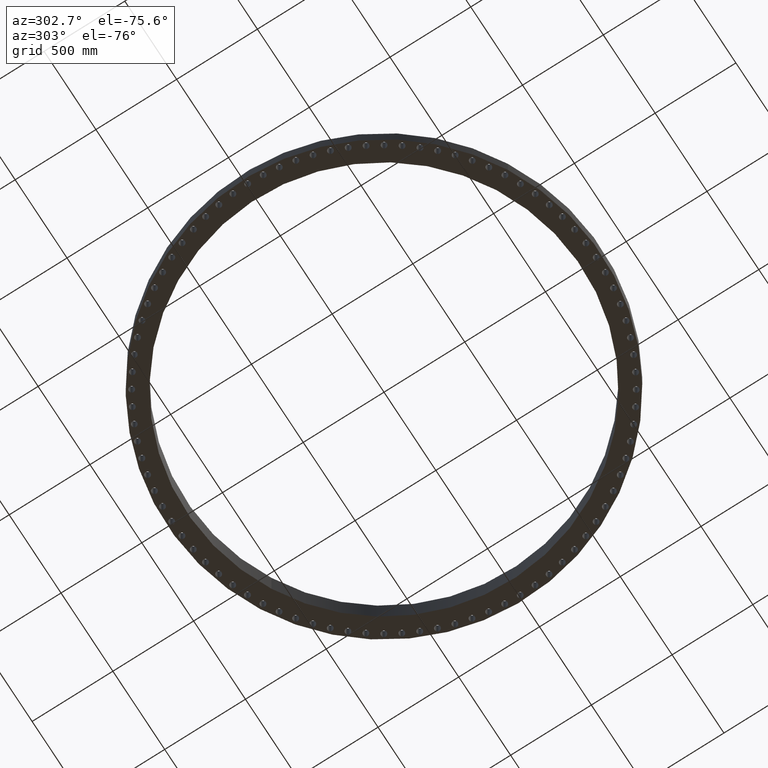
[diagram: clean part render]
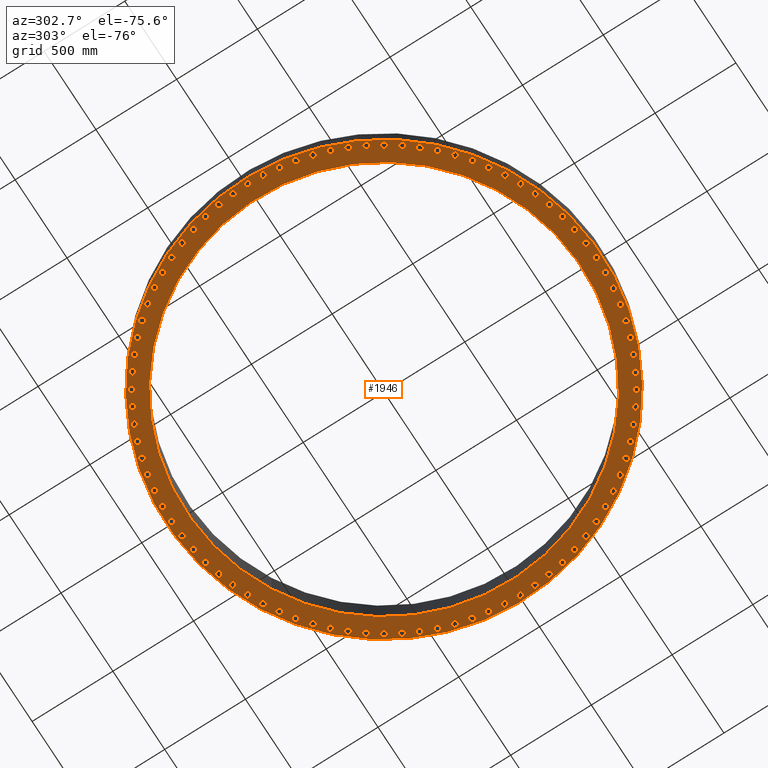
[diagram: same view with one face highlighted and labeled with its STEP entity id]
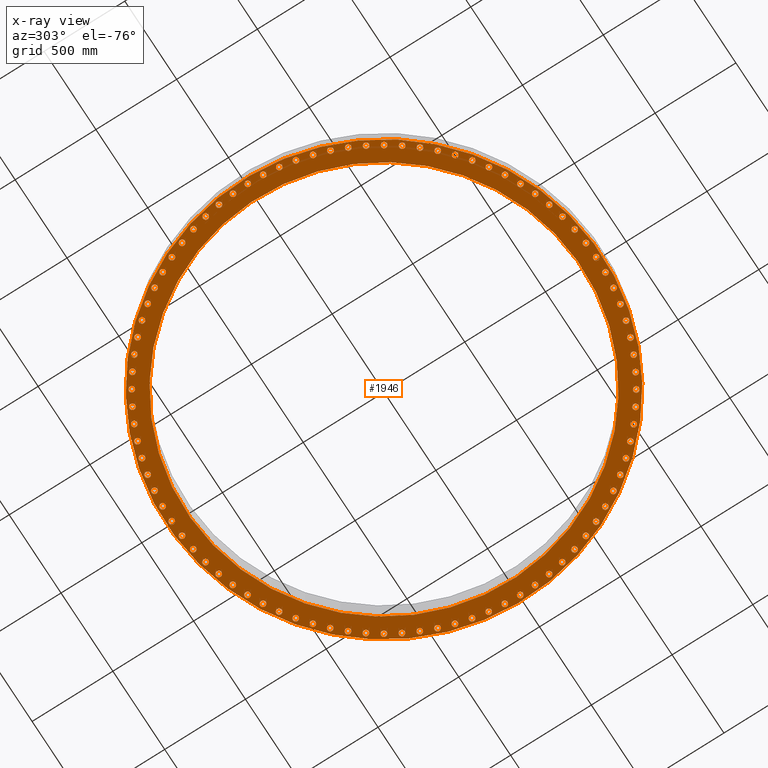
[diagram: x-ray of the same camera — body ghosted, the highlighted face saturated]
A machine part, auxiliary view. The second image highlights one B-rep face of the part: STEP entity #1946.
The next image is the same camera in x-ray: the body ghosted, the highlighted face saturated — about 0% of this face is hidden behind the body in this view.
In plain terms, the highlighted planar face has unit normal (0, 0, -1).
Its self-contained STEP definition (entity closure, byte-faithful):
#51=AXIS2_PLACEMENT_3D('Circle Axis2P3D',#49,#50,$) ;
#77=AXIS2_PLACEMENT_3D('Circle Axis2P3D',#75,#76,$) ;
#99=AXIS2_PLACEMENT_3D('Circle Axis2P3D',#97,#98,$) ;
#134=AXIS2_PLACEMENT_3D('Circle Axis2P3D',#132,#133,$) ;
#334=AXIS2_PLACEMENT_3D('Circle Axis2P3D',#332,#333,$) ;
#353=AXIS2_PLACEMENT_3D('Circle Axis2P3D',#351,#352,$) ;
#366=AXIS2_PLACEMENT_3D('Plane Axis2P3D',#363,#364,#365) ;
#382=AXIS2_PLACEMENT_3D('Circle Axis2P3D',#380,#381,$) ;
#391=AXIS2_PLACEMENT_3D('Circle Axis2P3D',#389,#390,$) ;
#400=AXIS2_PLACEMENT_3D('Circle Axis2P3D',#398,#399,$) ;
#409=AXIS2_PLACEMENT_3D('Circle Axis2P3D',#407,#408,$) ;
#418=AXIS2_PLACEMENT_3D('Circle Axis2P3D',#416,#417,$) ;
#427=AXIS2_PLACEMENT_3D('Circle Axis2P3D',#425,#426,$) ;
#436=AXIS2_PLACEMENT_3D('Circle Axis2P3D',#434,#435,$) ;
#445=AXIS2_PLACEMENT_3D('Circle Axis2P3D',#443,#444,$) ;
#454=AXIS2_PLACEMENT_3D('Circle Axis2P3D',#452,#453,$) ;
#463=AXIS2_PLACEMENT_3D('Circle Axis2P3D',#461,#462,$) ;
#472=AXIS2_PLACEMENT_3D('Circle Axis2P3D',#470,#471,$) ;
#481=AXIS2_PLACEMENT_3D('Circle Axis2P3D',#479,#480,$) ;
#490=AXIS2_PLACEMENT_3D('Circle Axis2P3D',#488,#489,$) ;
#499=AXIS2_PLACEMENT_3D('Circle Axis2P3D',#497,#498,$) ;
#508=AXIS2_PLACEMENT_3D('Circle Axis2P3D',#506,#507,$) ;
#517=AXIS2_PLACEMENT_3D('Circle Axis2P3D',#515,#516,$) ;
#526=AXIS2_PLACEMENT_3D('Circle Axis2P3D',#524,#525,$) ;
#535=AXIS2_PLACEMENT_3D('Circle Axis2P3D',#533,#534,$) ;
#544=AXIS2_PLACEMENT_3D('Circle Axis2P3D',#542,#543,$) ;
#553=AXIS2_PLACEMENT_3D('Circle Axis2P3D',#551,#552,$) ;
#562=AXIS2_PLACEMENT_3D('Circle Axis2P3D',#560,#561,$) ;
#571=AXIS2_PLACEMENT_3D('Circle Axis2P3D',#569,#570,$) ;
#580=AXIS2_PLACEMENT_3D('Circle Axis2P3D',#578,#579,$) ;
#589=AXIS2_PLACEMENT_3D('Circle Axis2P3D',#587,#588,$) ;
#598=AXIS2_PLACEMENT_3D('Circle Axis2P3D',#596,#597,$) ;
#607=AXIS2_PLACEMENT_3D('Circle Axis2P3D',#605,#606,$) ;
#616=AXIS2_PLACEMENT_3D('Circle Axis2P3D',#614,#615,$) ;
#625=AXIS2_PLACEMENT_3D('Circle Axis2P3D',#623,#624,$) ;
#634=AXIS2_PLACEMENT_3D('Circle Axis2P3D',#632,#633,$) ;
#643=AXIS2_PLACEMENT_3D('Circle Axis2P3D',#641,#642,$) ;
#652=AXIS2_PLACEMENT_3D('Circle Axis2P3D',#650,#651,$) ;
#661=AXIS2_PLACEMENT_3D('Circle Axis2P3D',#659,#660,$) ;
#670=AXIS2_PLACEMENT_3D('Circle Axis2P3D',#668,#669,$) ;
#679=AXIS2_PLACEMENT_3D('Circle Axis2P3D',#677,#678,$) ;
#688=AXIS2_PLACEMENT_3D('Circle Axis2P3D',#686,#687,$) ;
#697=AXIS2_PLACEMENT_3D('Circle Axis2P3D',#695,#696,$) ;
#706=AXIS2_PLACEMENT_3D('Circle Axis2P3D',#704,#705,$) ;
#715=AXIS2_PLACEMENT_3D('Circle Axis2P3D',#713,#714,$) ;
#724=AXIS2_PLACEMENT_3D('Circle Axis2P3D',#722,#723,$) ;
#733=AXIS2_PLACEMENT_3D('Circle Axis2P3D',#731,#732,$) ;
#742=AXIS2_PLACEMENT_3D('Circle Axis2P3D',#740,#741,$) ;
#751=AXIS2_PLACEMENT_3D('Circle Axis2P3D',#749,#750,$) ;
#760=AXIS2_PLACEMENT_3D('Circle Axis2P3D',#758,#759,$) ;
#769=AXIS2_PLACEMENT_3D('Circle Axis2P3D',#767,#768,$) ;
#778=AXIS2_PLACEMENT_3D('Circle Axis2P3D',#776,#777,$) ;
#787=AXIS2_PLACEMENT_3D('Circle Axis2P3D',#785,#786,$) ;
#796=AXIS2_PLACEMENT_3D('Circle Axis2P3D',#794,#795,$) ;
#805=AXIS2_PLACEMENT_3D('Circle Axis2P3D',#803,#804,$) ;
#814=AXIS2_PLACEMENT_3D('Circle Axis2P3D',#812,#813,$) ;
#823=AXIS2_PLACEMENT_3D('Circle Axis2P3D',#821,#822,$) ;
#832=AXIS2_PLACEMENT_3D('Circle Axis2P3D',#830,#831,$) ;
#841=AXIS2_PLACEMENT_3D('Circle Axis2P3D',#839,#840,$) ;
#850=AXIS2_PLACEMENT_3D('Circle Axis2P3D',#848,#849,$) ;
#859=AXIS2_PLACEMENT_3D('Circle Axis2P3D',#857,#858,$) ;
#868=AXIS2_PLACEMENT_3D('Circle Axis2P3D',#866,#867,$) ;
#877=AXIS2_PLACEMENT_3D('Circle Axis2P3D',#875,#876,$) ;
#886=AXIS2_PLACEMENT_3D('Circle Axis2P3D',#884,#885,$) ;
#895=AXIS2_PLACEMENT_3D('Circle Axis2P3D',#893,#894,$) ;
#904=AXIS2_PLACEMENT_3D('Circle Axis2P3D',#902,#903,$) ;
#913=AXIS2_PLACEMENT_3D('Circle Axis2P3D',#911,#912,$) ;
#922=AXIS2_PLACEMENT_3D('Circle Axis2P3D',#920,#921,$) ;
#931=AXIS2_PLACEMENT_3D('Circle Axis2P3D',#929,#930,$) ;
#940=AXIS2_PLACEMENT_3D('Circle Axis2P3D',#938,#939,$) ;
#949=AXIS2_PLACEMENT_3D('Circle Axis2P3D',#947,#948,$) ;
#958=AXIS2_PLACEMENT_3D('Circle Axis2P3D',#956,#957,$) ;
#967=AXIS2_PLACEMENT_3D('Circle Axis2P3D',#965,#966,$) ;
#976=AXIS2_PLACEMENT_3D('Circle Axis2P3D',#974,#975,$) ;
#985=AXIS2_PLACEMENT_3D('Circle Axis2P3D',#983,#984,$) ;
#994=AXIS2_PLACEMENT_3D('Circle Axis2P3D',#992,#993,$) ;
#1003=AXIS2_PLACEMENT_3D('Circle Axis2P3D',#1001,#1002,$) ;
#1012=AXIS2_PLACEMENT_3D('Circle Axis2P3D',#1010,#1011,$) ;
#1021=AXIS2_PLACEMENT_3D('Circle Axis2P3D',#1019,#1020,$) ;
#1030=AXIS2_PLACEMENT_3D('Circle Axis2P3D',#1028,#1029,$) ;
#1039=AXIS2_PLACEMENT_3D('Circle Axis2P3D',#1037,#1038,$) ;
#1048=AXIS2_PLACEMENT_3D('Circle Axis2P3D',#1046,#1047,$) ;
#1057=AXIS2_PLACEMENT_3D('Circle Axis2P3D',#1055,#1056,$) ;
#1066=AXIS2_PLACEMENT_3D('Circle Axis2P3D',#1064,#1065,$) ;
#1075=AXIS2_PLACEMENT_3D('Circle Axis2P3D',#1073,#1074,$) ;
#1084=AXIS2_PLACEMENT_3D('Circle Axis2P3D',#1082,#1083,$) ;
#1093=AXIS2_PLACEMENT_3D('Circle Axis2P3D',#1091,#1092,$) ;
#1102=AXIS2_PLACEMENT_3D('Circle Axis2P3D',#1100,#1101,$) ;
#1111=AXIS2_PLACEMENT_3D('Circle Axis2P3D',#1109,#1110,$) ;
#1120=AXIS2_PLACEMENT_3D('Circle Axis2P3D',#1118,#1119,$) ;
#1129=AXIS2_PLACEMENT_3D('Circle Axis2P3D',#1127,#1128,$) ;
#1138=AXIS2_PLACEMENT_3D('Circle Axis2P3D',#1136,#1137,$) ;
#1147=AXIS2_PLACEMENT_3D('Circle Axis2P3D',#1145,#1146,$) ;
#1156=AXIS2_PLACEMENT_3D('Circle Axis2P3D',#1154,#1155,$) ;
#1165=AXIS2_PLACEMENT_3D('Circle Axis2P3D',#1163,#1164,$) ;
#1174=AXIS2_PLACEMENT_3D('Circle Axis2P3D',#1172,#1173,$) ;
#1183=AXIS2_PLACEMENT_3D('Circle Axis2P3D',#1181,#1182,$) ;
#1192=AXIS2_PLACEMENT_3D('Circle Axis2P3D',#1190,#1191,$) ;
#1201=AXIS2_PLACEMENT_3D('Circle Axis2P3D',#1199,#1200,$) ;
#1210=AXIS2_PLACEMENT_3D('Circle Axis2P3D',#1208,#1209,$) ;
#1219=AXIS2_PLACEMENT_3D('Circle Axis2P3D',#1217,#1218,$) ;
#1228=AXIS2_PLACEMENT_3D('Circle Axis2P3D',#1226,#1227,$) ;
#1237=AXIS2_PLACEMENT_3D('Circle Axis2P3D',#1235,#1236,$) ;
#1246=AXIS2_PLACEMENT_3D('Circle Axis2P3D',#1244,#1245,$) ;
#1255=AXIS2_PLACEMENT_3D('Circle Axis2P3D',#1253,#1254,$) ;
#1264=AXIS2_PLACEMENT_3D('Circle Axis2P3D',#1262,#1263,$) ;
#1273=AXIS2_PLACEMENT_3D('Circle Axis2P3D',#1271,#1272,$) ;
#1282=AXIS2_PLACEMENT_3D('Circle Axis2P3D',#1280,#1281,$) ;
#1291=AXIS2_PLACEMENT_3D('Circle Axis2P3D',#1289,#1290,$) ;
#1300=AXIS2_PLACEMENT_3D('Circle Axis2P3D',#1298,#1299,$) ;
#1309=AXIS2_PLACEMENT_3D('Circle Axis2P3D',#1307,#1308,$) ;
#1318=AXIS2_PLACEMENT_3D('Circle Axis2P3D',#1316,#1317,$) ;
#1327=AXIS2_PLACEMENT_3D('Circle Axis2P3D',#1325,#1326,$) ;
#1336=AXIS2_PLACEMENT_3D('Circle Axis2P3D',#1334,#1335,$) ;
#1345=AXIS2_PLACEMENT_3D('Circle Axis2P3D',#1343,#1344,$) ;
#1354=AXIS2_PLACEMENT_3D('Circle Axis2P3D',#1352,#1353,$) ;
#1363=AXIS2_PLACEMENT_3D('Circle Axis2P3D',#1361,#1362,$) ;
#1372=AXIS2_PLACEMENT_3D('Circle Axis2P3D',#1370,#1371,$) ;
#1381=AXIS2_PLACEMENT_3D('Circle Axis2P3D',#1379,#1380,$) ;
#1390=AXIS2_PLACEMENT_3D('Circle Axis2P3D',#1388,#1389,$) ;
#1399=AXIS2_PLACEMENT_3D('Circle Axis2P3D',#1397,#1398,$) ;
#1408=AXIS2_PLACEMENT_3D('Circle Axis2P3D',#1406,#1407,$) ;
#1417=AXIS2_PLACEMENT_3D('Circle Axis2P3D',#1415,#1416,$) ;
#1426=AXIS2_PLACEMENT_3D('Circle Axis2P3D',#1424,#1425,$) ;
#1435=AXIS2_PLACEMENT_3D('Circle Axis2P3D',#1433,#1434,$) ;
#1444=AXIS2_PLACEMENT_3D('Circle Axis2P3D',#1442,#1443,$) ;
#1453=AXIS2_PLACEMENT_3D('Circle Axis2P3D',#1451,#1452,$) ;
#1462=AXIS2_PLACEMENT_3D('Circle Axis2P3D',#1460,#1461,$) ;
#1471=AXIS2_PLACEMENT_3D('Circle Axis2P3D',#1469,#1470,$) ;
#1480=AXIS2_PLACEMENT_3D('Circle Axis2P3D',#1478,#1479,$) ;
#1489=AXIS2_PLACEMENT_3D('Circle Axis2P3D',#1487,#1488,$) ;
#1498=AXIS2_PLACEMENT_3D('Circle Axis2P3D',#1496,#1497,$) ;
#1507=AXIS2_PLACEMENT_3D('Circle Axis2P3D',#1505,#1506,$) ;
#1516=AXIS2_PLACEMENT_3D('Circle Axis2P3D',#1514,#1515,$) ;
#1525=AXIS2_PLACEMENT_3D('Circle Axis2P3D',#1523,#1524,$) ;
#1534=AXIS2_PLACEMENT_3D('Circle Axis2P3D',#1532,#1533,$) ;
#1543=AXIS2_PLACEMENT_3D('Circle Axis2P3D',#1541,#1542,$) ;
#1552=AXIS2_PLACEMENT_3D('Circle Axis2P3D',#1550,#1551,$) ;
#1561=AXIS2_PLACEMENT_3D('Circle Axis2P3D',#1559,#1560,$) ;
#1570=AXIS2_PLACEMENT_3D('Circle Axis2P3D',#1568,#1569,$) ;
#1579=AXIS2_PLACEMENT_3D('Circle Axis2P3D',#1577,#1578,$) ;
#1588=AXIS2_PLACEMENT_3D('Circle Axis2P3D',#1586,#1587,$) ;
#1597=AXIS2_PLACEMENT_3D('Circle Axis2P3D',#1595,#1596,$) ;
#1606=AXIS2_PLACEMENT_3D('Circle Axis2P3D',#1604,#1605,$) ;
#1615=AXIS2_PLACEMENT_3D('Circle Axis2P3D',#1613,#1614,$) ;
#1624=AXIS2_PLACEMENT_3D('Circle Axis2P3D',#1622,#1623,$) ;
#1633=AXIS2_PLACEMENT_3D('Circle Axis2P3D',#1631,#1632,$) ;
#1642=AXIS2_PLACEMENT_3D('Circle Axis2P3D',#1640,#1641,$) ;
#1651=AXIS2_PLACEMENT_3D('Circle Axis2P3D',#1649,#1650,$) ;
#1660=AXIS2_PLACEMENT_3D('Circle Axis2P3D',#1658,#1659,$) ;
#1669=AXIS2_PLACEMENT_3D('Circle Axis2P3D',#1667,#1668,$) ;
#1678=AXIS2_PLACEMENT_3D('Circle Axis2P3D',#1676,#1677,$) ;
#1687=AXIS2_PLACEMENT_3D('Circle Axis2P3D',#1685,#1686,$) ;
#1696=AXIS2_PLACEMENT_3D('Circle Axis2P3D',#1694,#1695,$) ;
#1705=AXIS2_PLACEMENT_3D('Circle Axis2P3D',#1703,#1704,$) ;
#1714=AXIS2_PLACEMENT_3D('Circle Axis2P3D',#1712,#1713,$) ;
#1723=AXIS2_PLACEMENT_3D('Circle Axis2P3D',#1721,#1722,$) ;
#1732=AXIS2_PLACEMENT_3D('Circle Axis2P3D',#1730,#1731,$) ;
#1741=AXIS2_PLACEMENT_3D('Circle Axis2P3D',#1739,#1740,$) ;
#1750=AXIS2_PLACEMENT_3D('Circle Axis2P3D',#1748,#1749,$) ;
#1759=AXIS2_PLACEMENT_3D('Circle Axis2P3D',#1757,#1758,$) ;
#1768=AXIS2_PLACEMENT_3D('Circle Axis2P3D',#1766,#1767,$) ;
#1777=AXIS2_PLACEMENT_3D('Circle Axis2P3D',#1775,#1776,$) ;
#1786=AXIS2_PLACEMENT_3D('Circle Axis2P3D',#1784,#1785,$) ;
#1795=AXIS2_PLACEMENT_3D('Circle Axis2P3D',#1793,#1794,$) ;
#1804=AXIS2_PLACEMENT_3D('Circle Axis2P3D',#1802,#1803,$) ;
#1813=AXIS2_PLACEMENT_3D('Circle Axis2P3D',#1811,#1812,$) ;
#1822=AXIS2_PLACEMENT_3D('Circle Axis2P3D',#1820,#1821,$) ;
#1831=AXIS2_PLACEMENT_3D('Circle Axis2P3D',#1829,#1830,$) ;
#1840=AXIS2_PLACEMENT_3D('Circle Axis2P3D',#1838,#1839,$) ;
#1849=AXIS2_PLACEMENT_3D('Circle Axis2P3D',#1847,#1848,$) ;
#1858=AXIS2_PLACEMENT_3D('Circle Axis2P3D',#1856,#1857,$) ;
#1867=AXIS2_PLACEMENT_3D('Circle Axis2P3D',#1865,#1866,$) ;
#1876=AXIS2_PLACEMENT_3D('Circle Axis2P3D',#1874,#1875,$) ;
#1885=AXIS2_PLACEMENT_3D('Circle Axis2P3D',#1883,#1884,$) ;
#1894=AXIS2_PLACEMENT_3D('Circle Axis2P3D',#1892,#1893,$) ;
#1903=AXIS2_PLACEMENT_3D('Circle Axis2P3D',#1901,#1902,$) ;
#1912=AXIS2_PLACEMENT_3D('Circle Axis2P3D',#1910,#1911,$) ;
#1921=AXIS2_PLACEMENT_3D('Circle Axis2P3D',#1919,#1920,$) ;
#1930=AXIS2_PLACEMENT_3D('Circle Axis2P3D',#1928,#1929,$) ;
#1939=AXIS2_PLACEMENT_3D('Circle Axis2P3D',#1937,#1938,$) ;
#44=CARTESIAN_POINT('Vertex',(51.1444680325,0.330803621638,0.)) ;
#49=CARTESIAN_POINT('Axis2P3D Location',(51.7500000002,0.,0.)) ;
#53=CARTESIAN_POINT('Vertex',(52.3555319679,-0.330803621638,0.)) ;
#75=CARTESIAN_POINT('Axis2P3D Location',(51.7500000002,0.,0.)) ;
#97=CARTESIAN_POINT('Axis2P3D Location',(0.,0.,6.71378962923E-015)) ;
#101=CARTESIAN_POINT('Vertex',(-25.4095535461,-46.5118757804,6.15430716013E-015)) ;
#103=CARTESIAN_POINT('Vertex',(25.4095535461,46.5118757804,6.15430716013E-015)) ;
#132=CARTESIAN_POINT('Axis2P3D Location',(0.,0.,6.71378962923E-015)) ;
#329=CARTESIAN_POINT('Vertex',(-23.0723540454,-42.2336607911,-5.20318696265E-014)) ;
#332=CARTESIAN_POINT('Axis2P3D Location',(0.,0.,-5.37103170338E-014)) ;
#336=CARTESIAN_POINT('Vertex',(23.0723540454,42.2336607911,-5.20318696265E-014)) ;
#351=CARTESIAN_POINT('Axis2P3D Location',(0.,0.,-5.37103170338E-014)) ;
#363=CARTESIAN_POINT('Axis2P3D Location',(0.,48.1250000002,0.)) ;
#380=CARTESIAN_POINT('Axis2P3D Location',(51.6181469313,-3.69180273058,0.)) ;
#384=CARTESIAN_POINT('Vertex',(51.0377570498,-3.31864380267,0.)) ;
#386=CARTESIAN_POINT('Vertex',(52.1985368128,-4.06496165848,-4.47585975282E-015)) ;
#389=CARTESIAN_POINT('Axis2P3D Location',(51.6181469313,-3.69180273058,0.)) ;
#398=CARTESIAN_POINT('Axis2P3D Location',(51.2232596175,-7.36479288067,0.)) ;
#402=CARTESIAN_POINT('Vertex',(50.6709693561,-6.95118017887,0.)) ;
#404=CARTESIAN_POINT('Vertex',(51.775549879,-7.77840558247,-4.47585975282E-015)) ;
#407=CARTESIAN_POINT('Axis2P3D Location',(51.2232596175,-7.36479288067,0.)) ;
#416=CARTESIAN_POINT('Axis2P3D Location',(50.5673503142,-11.0002537344,0.)) ;
#420=CARTESIAN_POINT('Vertex',(50.0459740173,-10.5482949342,0.)) ;
#422=CARTESIAN_POINT('Vertex',(51.0887266111,-11.4522125346,0.)) ;
#425=CARTESIAN_POINT('Axis2P3D Location',(50.5673503142,-11.0002537344,0.)) ;
#434=CARTESIAN_POINT('Axis2P3D Location',(49.6537613847,-14.5796598166,0.)) ;
#438=CARTESIAN_POINT('Vertex',(49.1659558666,-14.0916579965,0.)) ;
#440=CARTESIAN_POINT('Vertex',(50.1415669029,-15.0676616367,-4.47585975282E-015)) ;
#443=CARTESIAN_POINT('Axis2P3D Location',(49.6537613847,-14.5796598166,0.)) ;
#452=CARTESIAN_POINT('Axis2P3D Location',(48.4871482689,-18.0847712943,0.)) ;
#456=CARTESIAN_POINT('Vertex',(48.0353992746,-17.5632131997,0.)) ;
#458=CARTESIAN_POINT('Vertex',(48.9388972633,-18.606329389,-4.47585975282E-015)) ;
#461=CARTESIAN_POINT('Axis2P3D Location',(48.4871482689,-18.0847712943,0.)) ;
#470=CARTESIAN_POINT('Axis2P3D Location',(47.0734557598,-21.4977269229,0.)) ;
#474=CARTESIAN_POINT('Vertex',(46.6600652985,-20.9452702943,0.)) ;
#476=CARTESIAN_POINT('Vertex',(47.486846221,-22.0501835516,0.)) ;
#479=CARTESIAN_POINT('Axis2P3D Location',(47.0734557598,-21.4977269229,0.)) ;
#488=CARTESIAN_POINT('Axis2P3D Location',(45.4198877103,-24.8011350629,0.)) ;
#492=CARTESIAN_POINT('Vertex',(45.0469623252,-24.2205950925,0.)) ;
#494=CARTESIAN_POINT('Vertex',(45.7928130954,-25.3816750332,0.)) ;
#497=CARTESIAN_POINT('Axis2P3D Location',(45.4198877103,-24.8011350629,0.)) ;
#506=CARTESIAN_POINT('Axis2P3D Location',(43.5348703242,-27.9781623034,0.)) ;
#510=CARTESIAN_POINT('Vertex',(43.2043103575,-27.37249729,0.)) ;
#512=CARTESIAN_POINT('Vertex',(43.8654302908,-28.5838273168,0.)) ;
#515=CARTESIAN_POINT('Axis2P3D Location',(43.5348703242,-27.9781623034,0.)) ;
#524=CARTESIAN_POINT('Axis2P3D Location',(41.428009218,-31.0126192421,0.)) ;
#528=CARTESIAN_POINT('Vertex',(41.1414991276,-30.3849155157,0.)) ;
#530=CARTESIAN_POINT('Vertex',(41.7145193084,-31.6403229685,0.)) ;
#533=CARTESIAN_POINT('Axis2P3D Location',(41.428009218,-31.0126192421,0.)) ;
#542=CARTESIAN_POINT('Axis2P3D Location',(39.110040473,-33.8890429818,0.)) ;
#546=CARTESIAN_POINT('Vertex',(38.8690402486,-33.2424991768,0.)) ;
#548=CARTESIAN_POINT('Vertex',(39.3510406974,-34.5355867869,0.)) ;
#551=CARTESIAN_POINT('Axis2P3D Location',(39.110040473,-33.8890429818,0.)) ;
#560=CARTESIAN_POINT('Axis2P3D Location',(36.5927759266,-36.5927759266,0.)) ;
#564=CARTESIAN_POINT('Vertex',(36.3985136501,-35.9306866819,0.)) ;
#566=CARTESIAN_POINT('Vertex',(36.787038203,-37.2548651712,0.)) ;
#569=CARTESIAN_POINT('Axis2P3D Location',(36.5927759266,-36.5927759266,0.)) ;
#578=CARTESIAN_POINT('Axis2P3D Location',(33.8890429818,-39.110040473,0.)) ;
#582=CARTESIAN_POINT('Vertex',(33.7425085693,-38.4357796437,0.)) ;
#584=CARTESIAN_POINT('Vertex',(34.0355773944,-39.7843013023,-4.47585975282E-015)) ;
#587=CARTESIAN_POINT('Axis2P3D Location',(33.8890429818,-39.110040473,0.)) ;
#596=CARTESIAN_POINT('Axis2P3D Location',(31.0126192421,-41.428009218,0.)) ;
#600=CARTESIAN_POINT('Vertex',(30.9145593992,-40.7450126827,0.)) ;
#602=CARTESIAN_POINT('Vertex',(31.1106790849,-42.1110057533,0.)) ;
#605=CARTESIAN_POINT('Axis2P3D Location',(31.0126192421,-41.428009218,0.)) ;
#614=CARTESIAN_POINT('Axis2P3D Location',(27.9781623034,-43.5348703242,0.)) ;
#618=CARTESIAN_POINT('Vertex',(27.9290767208,-42.8466184767,0.)) ;
#620=CARTESIAN_POINT('Vertex',(28.0272478861,-44.2231221717,0.)) ;
#623=CARTESIAN_POINT('Axis2P3D Location',(27.9781623034,-43.5348703242,0.)) ;
#632=CARTESIAN_POINT('Axis2P3D Location',(24.8011350629,-45.4198877103,0.)) ;
#636=CARTESIAN_POINT('Vertex',(24.8012738693,-44.7298877242,0.)) ;
#638=CARTESIAN_POINT('Vertex',(24.8009962564,-46.1098876963,0.)) ;
#641=CARTESIAN_POINT('Axis2P3D Location',(24.8011350629,-45.4198877103,0.)) ;
#650=CARTESIAN_POINT('Axis2P3D Location',(21.4977269229,-47.0734557598,0.)) ;
#654=CARTESIAN_POINT('Vertex',(21.5470894111,-46.385223717,0.)) ;
#656=CARTESIAN_POINT('Vertex',(21.4483644348,-47.7616878026,0.)) ;
#659=CARTESIAN_POINT('Axis2P3D Location',(21.4977269229,-47.0734557598,0.)) ;
#668=CARTESIAN_POINT('Axis2P3D Location',(18.0847712943,-48.4871482689,0.)) ;
#672=CARTESIAN_POINT('Vertex',(18.1831059243,-47.8041912421,0.)) ;
#674=CARTESIAN_POINT('Vertex',(17.9864366643,-49.1701052958,0.)) ;
#677=CARTESIAN_POINT('Axis2P3D Location',(18.0847712943,-48.4871482689,0.)) ;
#686=CARTESIAN_POINT('Axis2P3D Location',(14.5796598166,-49.6537613847,0.)) ;
#690=CARTESIAN_POINT('Vertex',(14.7264654977,-48.9795595663,0.)) ;
#692=CARTESIAN_POINT('Vertex',(14.4328541355,-50.3279632032,-4.47585975282E-015)) ;
#695=CARTESIAN_POINT('Axis2P3D Location',(14.5796598166,-49.6537613847,0.)) ;
#704=CARTESIAN_POINT('Axis2P3D Location',(11.0002537344,-50.5673503142,0.)) ;
#708=CARTESIAN_POINT('Vertex',(11.1947823785,-49.9053392821,0.)) ;
#710=CARTESIAN_POINT('Vertex',(10.8057250903,-51.2293613463,0.)) ;
#713=CARTESIAN_POINT('Axis2P3D Location',(11.0002537344,-50.5673503142,0.)) ;
#722=CARTESIAN_POINT('Axis2P3D Location',(7.36479288067,-51.2232596175,0.)) ;
#726=CARTESIAN_POINT('Vertex',(7.60605321437,-50.5768128282,0.)) ;
#728=CARTESIAN_POINT('Vertex',(7.12353254698,-51.8697064068,0.)) ;
#731=CARTESIAN_POINT('Axis2P3D Location',(7.36479288067,-51.2232596175,0.)) ;
#740=CARTESIAN_POINT('Axis2P3D Location',(3.69180273058,-51.6181469313,0.)) ;
#744=CARTESIAN_POINT('Vertex',(3.97856534652,-50.9905585295,0.)) ;
#746=CARTESIAN_POINT('Vertex',(3.40504011463,-52.2457353331,-4.47585975282E-015)) ;
#749=CARTESIAN_POINT('Axis2P3D Location',(3.69180273058,-51.6181469313,0.)) ;
#758=CARTESIAN_POINT('Axis2P3D Location',(-2.44773580232E-015,-51.7500000002,0.)) ;
#762=CARTESIAN_POINT('Vertex',(0.330803621638,-51.1444680325,0.)) ;
#764=CARTESIAN_POINT('Vertex',(-0.330803621638,-52.3555319679,0.)) ;
#767=CARTESIAN_POINT('Axis2P3D Location',(-8.53210765381E-015,-51.7500000002,0.)) ;
#776=CARTESIAN_POINT('Axis2P3D Location',(-3.69180273058,-51.6181469313,0.)) ;
#780=CARTESIAN_POINT('Vertex',(-3.31864380267,-51.0377570498,0.)) ;
#782=CARTESIAN_POINT('Vertex',(-4.06496165848,-52.1985368128,-4.47585975282E-015)) ;
#785=CARTESIAN_POINT('Axis2P3D Location',(-3.69180273058,-51.6181469313,0.)) ;
#794=CARTESIAN_POINT('Axis2P3D Location',(-7.36479288067,-51.2232596175,0.)) ;
#798=CARTESIAN_POINT('Vertex',(-6.95118017887,-50.6709693561,0.)) ;
#800=CARTESIAN_POINT('Vertex',(-7.77840558247,-51.775549879,0.)) ;
#803=CARTESIAN_POINT('Axis2P3D Location',(-7.36479288067,-51.2232596175,0.)) ;
#812=CARTESIAN_POINT('Axis2P3D Location',(-11.0002537344,-50.5673503142,0.)) ;
#816=CARTESIAN_POINT('Vertex',(-10.5482949342,-50.0459740173,0.)) ;
#818=CARTESIAN_POINT('Vertex',(-11.4522125346,-51.0887266111,0.)) ;
#821=CARTESIAN_POINT('Axis2P3D Location',(-11.0002537344,-50.5673503142,0.)) ;
#830=CARTESIAN_POINT('Axis2P3D Location',(-14.5796598166,-49.6537613847,0.)) ;
#834=CARTESIAN_POINT('Vertex',(-14.0916579965,-49.1659558666,0.)) ;
#836=CARTESIAN_POINT('Vertex',(-15.0676616367,-50.1415669029,-4.47585975282E-015)) ;
#839=CARTESIAN_POINT('Axis2P3D Location',(-14.5796598166,-49.6537613847,0.)) ;
#848=CARTESIAN_POINT('Axis2P3D Location',(-18.0847712943,-48.4871482689,0.)) ;
#852=CARTESIAN_POINT('Vertex',(-17.5632131997,-48.0353992746,0.)) ;
#854=CARTESIAN_POINT('Vertex',(-18.606329389,-48.9388972633,-4.47585975282E-015)) ;
#857=CARTESIAN_POINT('Axis2P3D Location',(-18.0847712943,-48.4871482689,0.)) ;
#866=CARTESIAN_POINT('Axis2P3D Location',(-21.4977269229,-47.0734557598,0.)) ;
#870=CARTESIAN_POINT('Vertex',(-20.9452702943,-46.6600652985,0.)) ;
#872=CARTESIAN_POINT('Vertex',(-22.0501835516,-47.486846221,0.)) ;
#875=CARTESIAN_POINT('Axis2P3D Location',(-21.4977269229,-47.0734557598,0.)) ;
#884=CARTESIAN_POINT('Axis2P3D Location',(-24.8011350629,-45.4198877103,0.)) ;
#888=CARTESIAN_POINT('Vertex',(-24.2205950925,-45.0469623252,0.)) ;
#890=CARTESIAN_POINT('Vertex',(-25.3816750332,-45.7928130954,-4.47585975282E-015)) ;
#893=CARTESIAN_POINT('Axis2P3D Location',(-24.8011350629,-45.4198877103,0.)) ;
#902=CARTESIAN_POINT('Axis2P3D Location',(-27.9781623034,-43.5348703242,0.)) ;
#906=CARTESIAN_POINT('Vertex',(-27.37249729,-43.2043103575,0.)) ;
#908=CARTESIAN_POINT('Vertex',(-28.5838273168,-43.8654302908,-4.47585975282E-015)) ;
#911=CARTESIAN_POINT('Axis2P3D Location',(-27.9781623034,-43.5348703242,0.)) ;
#920=CARTESIAN_POINT('Axis2P3D Location',(-31.0126192421,-41.428009218,0.)) ;
#924=CARTESIAN_POINT('Vertex',(-30.3849155157,-41.1414991276,0.)) ;
#926=CARTESIAN_POINT('Vertex',(-31.6403229685,-41.7145193084,0.)) ;
#929=CARTESIAN_POINT('Axis2P3D Location',(-31.0126192421,-41.428009218,0.)) ;
#938=CARTESIAN_POINT('Axis2P3D Location',(-33.8890429818,-39.110040473,0.)) ;
#942=CARTESIAN_POINT('Vertex',(-33.2424991768,-38.8690402486,0.)) ;
#944=CARTESIAN_POINT('Vertex',(-34.5355867869,-39.3510406974,-4.47585975282E-015)) ;
#947=CARTESIAN_POINT('Axis2P3D Location',(-33.8890429818,-39.110040473,0.)) ;
#956=CARTESIAN_POINT('Axis2P3D Location',(-36.5927759266,-36.5927759266,0.)) ;
#960=CARTESIAN_POINT('Vertex',(-35.9306866819,-36.3985136501,0.)) ;
#962=CARTESIAN_POINT('Vertex',(-37.2548651712,-36.787038203,0.)) ;
#965=CARTESIAN_POINT('Axis2P3D Location',(-36.5927759266,-36.5927759266,0.)) ;
#974=CARTESIAN_POINT('Axis2P3D Location',(-39.110040473,-33.8890429818,0.)) ;
#978=CARTESIAN_POINT('Vertex',(-38.4357796437,-33.7425085693,0.)) ;
#980=CARTESIAN_POINT('Vertex',(-39.7843013023,-34.0355773944,0.)) ;
#983=CARTESIAN_POINT('Axis2P3D Location',(-39.110040473,-33.8890429818,0.)) ;
#992=CARTESIAN_POINT('Axis2P3D Location',(-41.428009218,-31.0126192421,0.)) ;
#996=CARTESIAN_POINT('Vertex',(-40.7450126827,-30.9145593992,0.)) ;
#998=CARTESIAN_POINT('Vertex',(-42.1110057533,-31.1106790849,0.)) ;
#1001=CARTESIAN_POINT('Axis2P3D Location',(-41.428009218,-31.0126192421,0.)) ;
#1010=CARTESIAN_POINT('Axis2P3D Location',(-43.5348703242,-27.9781623034,0.)) ;
#1014=CARTESIAN_POINT('Vertex',(-42.8466184767,-27.9290767208,0.)) ;
#1016=CARTESIAN_POINT('Vertex',(-44.2231221717,-28.0272478861,0.)) ;
#1019=CARTESIAN_POINT('Axis2P3D Location',(-43.5348703242,-27.9781623034,0.)) ;
#1028=CARTESIAN_POINT('Axis2P3D Location',(-45.4198877103,-24.8011350629,0.)) ;
#1032=CARTESIAN_POINT('Vertex',(-44.7298877242,-24.8012738693,0.)) ;
#1034=CARTESIAN_POINT('Vertex',(-46.1098876963,-24.8009962564,-4.47585975282E-015)) ;
#1037=CARTESIAN_POINT('Axis2P3D Location',(-45.4198877103,-24.8011350629,0.)) ;
#1046=CARTESIAN_POINT('Axis2P3D Location',(-47.0734557598,-21.4977269229,0.)) ;
#1050=CARTESIAN_POINT('Vertex',(-46.385223717,-21.5470894111,0.)) ;
#1052=CARTESIAN_POINT('Vertex',(-47.7616878026,-21.4483644348,0.)) ;
#1055=CARTESIAN_POINT('Axis2P3D Location',(-47.0734557598,-21.4977269229,0.)) ;
#1064=CARTESIAN_POINT('Axis2P3D Location',(-48.4871482689,-18.0847712943,0.)) ;
#1068=CARTESIAN_POINT('Vertex',(-47.8041912421,-18.1831059243,0.)) ;
#1070=CARTESIAN_POINT('Vertex',(-49.1701052958,-17.9864366643,-4.47585975282E-015)) ;
#1073=CARTESIAN_POINT('Axis2P3D Location',(-48.4871482689,-18.0847712943,0.)) ;
#1082=CARTESIAN_POINT('Axis2P3D Location',(-49.6537613847,-14.5796598166,0.)) ;
#1086=CARTESIAN_POINT('Vertex',(-48.9795595663,-14.7264654977,0.)) ;
#1088=CARTESIAN_POINT('Vertex',(-50.3279632032,-14.4328541355,0.)) ;
#1091=CARTESIAN_POINT('Axis2P3D Location',(-49.6537613847,-14.5796598166,0.)) ;
#1100=CARTESIAN_POINT('Axis2P3D Location',(-50.5673503142,-11.0002537344,0.)) ;
#1104=CARTESIAN_POINT('Vertex',(-49.9053392821,-11.1947823785,0.)) ;
#1106=CARTESIAN_POINT('Vertex',(-51.2293613463,-10.8057250903,0.)) ;
#1109=CARTESIAN_POINT('Axis2P3D Location',(-50.5673503142,-11.0002537344,0.)) ;
#1118=CARTESIAN_POINT('Axis2P3D Location',(-51.2232596175,-7.36479288067,0.)) ;
#1122=CARTESIAN_POINT('Vertex',(-50.5768128282,-7.60605321437,0.)) ;
#1124=CARTESIAN_POINT('Vertex',(-51.8697064068,-7.12353254698,-4.47585975282E-015)) ;
#1127=CARTESIAN_POINT('Axis2P3D Location',(-51.2232596175,-7.36479288067,0.)) ;
#1136=CARTESIAN_POINT('Axis2P3D Location',(-51.6181469313,-3.69180273058,0.)) ;
#1140=CARTESIAN_POINT('Vertex',(-50.9905585295,-3.97856534652,0.)) ;
#1142=CARTESIAN_POINT('Vertex',(-52.2457353331,-3.40504011463,-4.47585975282E-015)) ;
#1145=CARTESIAN_POINT('Axis2P3D Location',(-51.6181469313,-3.69180273058,0.)) ;
#1154=CARTESIAN_POINT('Axis2P3D Location',(-51.7500000002,-8.95171950564E-015,0.)) ;
#1158=CARTESIAN_POINT('Vertex',(-51.1444680325,-0.330803621638,0.)) ;
#1160=CARTESIAN_POINT('Vertex',(-52.3555319679,0.330803621638,0.)) ;
#1163=CARTESIAN_POINT('Axis2P3D Location',(-51.7500000002,-8.95171950564E-015,0.)) ;
#1172=CARTESIAN_POINT('Axis2P3D Location',(-51.6181469313,3.69180273058,0.)) ;
#1176=CARTESIAN_POINT('Vertex',(-51.0377570498,3.31864380267,0.)) ;
#1178=CARTESIAN_POINT('Vertex',(-52.1985368128,4.06496165848,-4.47585975282E-015)) ;
#1181=CARTESIAN_POINT('Axis2P3D Location',(-51.6181469313,3.69180273058,0.)) ;
#1190=CARTESIAN_POINT('Axis2P3D Location',(-51.2232596175,7.36479288067,0.)) ;
#1194=CARTESIAN_POINT('Vertex',(-50.6709693561,6.95118017887,0.)) ;
#1196=CARTESIAN_POINT('Vertex',(-51.775549879,7.77840558247,0.)) ;
#1199=CARTESIAN_POINT('Axis2P3D Location',(-51.2232596175,7.36479288067,0.)) ;
#1208=CARTESIAN_POINT('Axis2P3D Location',(-50.5673503142,11.0002537344,0.)) ;
#1212=CARTESIAN_POINT('Vertex',(-50.0459740173,10.5482949342,0.)) ;
#1214=CARTESIAN_POINT('Vertex',(-51.0887266111,11.4522125346,0.)) ;
#1217=CARTESIAN_POINT('Axis2P3D Location',(-50.5673503142,11.0002537344,0.)) ;
#1226=CARTESIAN_POINT('Axis2P3D Location',(-49.6537613847,14.5796598166,0.)) ;
#1230=CARTESIAN_POINT('Vertex',(-49.1659558666,14.0916579965,0.)) ;
#1232=CARTESIAN_POINT('Vertex',(-50.1415669029,15.0676616367,0.)) ;
#1235=CARTESIAN_POINT('Axis2P3D Location',(-49.6537613847,14.5796598166,0.)) ;
#1244=CARTESIAN_POINT('Axis2P3D Location',(-48.4871482689,18.0847712943,0.)) ;
#1248=CARTESIAN_POINT('Vertex',(-48.0353992746,17.5632131997,0.)) ;
#1250=CARTESIAN_POINT('Vertex',(-48.9388972633,18.606329389,0.)) ;
#1253=CARTESIAN_POINT('Axis2P3D Location',(-48.4871482689,18.0847712943,0.)) ;
#1262=CARTESIAN_POINT('Axis2P3D Location',(-47.0734557598,21.4977269229,0.)) ;
#1266=CARTESIAN_POINT('Vertex',(-46.6600652985,20.9452702943,0.)) ;
#1268=CARTESIAN_POINT('Vertex',(-47.486846221,22.0501835516,0.)) ;
#1271=CARTESIAN_POINT('Axis2P3D Location',(-47.0734557598,21.4977269229,0.)) ;
#1280=CARTESIAN_POINT('Axis2P3D Location',(-45.4198877103,24.8011350629,0.)) ;
#1284=CARTESIAN_POINT('Vertex',(-45.0469623252,24.2205950925,0.)) ;
#1286=CARTESIAN_POINT('Vertex',(-45.7928130954,25.3816750332,-4.47585975282E-015)) ;
#1289=CARTESIAN_POINT('Axis2P3D Location',(-45.4198877103,24.8011350629,0.)) ;
#1298=CARTESIAN_POINT('Axis2P3D Location',(-43.5348703242,27.9781623034,0.)) ;
#1302=CARTESIAN_POINT('Vertex',(-43.2043103575,27.37249729,0.)) ;
#1304=CARTESIAN_POINT('Vertex',(-43.8654302908,28.5838273168,0.)) ;
#1307=CARTESIAN_POINT('Axis2P3D Location',(-43.5348703242,27.9781623034,0.)) ;
#1316=CARTESIAN_POINT('Axis2P3D Location',(-41.428009218,31.0126192421,0.)) ;
#1320=CARTESIAN_POINT('Vertex',(-41.1414991276,30.3849155157,0.)) ;
#1322=CARTESIAN_POINT('Vertex',(-41.7145193084,31.6403229685,-4.47585975282E-015)) ;
#1325=CARTESIAN_POINT('Axis2P3D Location',(-41.428009218,31.0126192421,0.)) ;
#1334=CARTESIAN_POINT('Axis2P3D Location',(-39.110040473,33.8890429818,0.)) ;
#1338=CARTESIAN_POINT('Vertex',(-38.8690402486,33.2424991768,0.)) ;
#1340=CARTESIAN_POINT('Vertex',(-39.3510406974,34.5355867869,0.)) ;
#1343=CARTESIAN_POINT('Axis2P3D Location',(-39.110040473,33.8890429818,0.)) ;
#1352=CARTESIAN_POINT('Axis2P3D Location',(-36.5927759266,36.5927759266,0.)) ;
#1356=CARTESIAN_POINT('Vertex',(-36.3985136501,35.9306866819,0.)) ;
#1358=CARTESIAN_POINT('Vertex',(-36.787038203,37.2548651712,0.)) ;
#1361=CARTESIAN_POINT('Axis2P3D Location',(-36.5927759266,36.5927759266,0.)) ;
#1370=CARTESIAN_POINT('Axis2P3D Location',(-33.8890429818,39.110040473,0.)) ;
#1374=CARTESIAN_POINT('Vertex',(-33.7425085693,38.4357796437,0.)) ;
#1376=CARTESIAN_POINT('Vertex',(-34.0355773944,39.7843013023,0.)) ;
#1379=CARTESIAN_POINT('Axis2P3D Location',(-33.8890429818,39.110040473,0.)) ;
#1388=CARTESIAN_POINT('Axis2P3D Location',(-31.0126192421,41.428009218,0.)) ;
#1392=CARTESIAN_POINT('Vertex',(-30.9145593992,40.7450126827,0.)) ;
#1394=CARTESIAN_POINT('Vertex',(-31.1106790849,42.1110057533,0.)) ;
#1397=CARTESIAN_POINT('Axis2P3D Location',(-31.0126192421,41.428009218,0.)) ;
#1406=CARTESIAN_POINT('Axis2P3D Location',(-27.9781623034,43.5348703242,0.)) ;
#1410=CARTESIAN_POINT('Vertex',(-27.9290767208,42.8466184767,0.)) ;
#1412=CARTESIAN_POINT('Vertex',(-28.0272478861,44.2231221717,0.)) ;
#1415=CARTESIAN_POINT('Axis2P3D Location',(-27.9781623034,43.5348703242,0.)) ;
#1424=CARTESIAN_POINT('Axis2P3D Location',(-24.8011350629,45.4198877103,0.)) ;
#1428=CARTESIAN_POINT('Vertex',(-24.8012738693,44.7298877242,0.)) ;
#1430=CARTESIAN_POINT('Vertex',(-24.8009962564,46.1098876963,0.)) ;
#1433=CARTESIAN_POINT('Axis2P3D Location',(-24.8011350629,45.4198877103,0.)) ;
#1442=CARTESIAN_POINT('Axis2P3D Location',(-21.4977269229,47.0734557598,0.)) ;
#1446=CARTESIAN_POINT('Vertex',(-21.5470894111,46.385223717,0.)) ;
#1448=CARTESIAN_POINT('Vertex',(-21.4483644348,47.7616878026,0.)) ;
#1451=CARTESIAN_POINT('Axis2P3D Location',(-21.4977269229,47.0734557598,0.)) ;
#1460=CARTESIAN_POINT('Axis2P3D Location',(-18.0847712943,48.4871482689,0.)) ;
#1464=CARTESIAN_POINT('Vertex',(-18.1831059243,47.8041912421,0.)) ;
#1466=CARTESIAN_POINT('Vertex',(-17.9864366643,49.1701052958,0.)) ;
#1469=CARTESIAN_POINT('Axis2P3D Location',(-18.0847712943,48.4871482689,0.)) ;
#1478=CARTESIAN_POINT('Axis2P3D Location',(-14.5796598166,49.6537613847,0.)) ;
#1482=CARTESIAN_POINT('Vertex',(-14.7264654977,48.9795595663,0.)) ;
#1484=CARTESIAN_POINT('Vertex',(-14.4328541355,50.3279632032,-4.47585975282E-015)) ;
#1487=CARTESIAN_POINT('Axis2P3D Location',(-14.5796598166,49.6537613847,0.)) ;
#1496=CARTESIAN_POINT('Axis2P3D Location',(-11.0002537344,50.5673503142,0.)) ;
#1500=CARTESIAN_POINT('Vertex',(-11.1947823785,49.9053392821,0.)) ;
#1502=CARTESIAN_POINT('Vertex',(-10.8057250903,51.2293613463,0.)) ;
#1505=CARTESIAN_POINT('Axis2P3D Location',(-11.0002537344,50.5673503142,0.)) ;
#1514=CARTESIAN_POINT('Axis2P3D Location',(-7.36479288067,51.2232596175,0.)) ;
#1518=CARTESIAN_POINT('Vertex',(-7.60605321437,50.5768128282,0.)) ;
#1520=CARTESIAN_POINT('Vertex',(-7.12353254698,51.8697064068,0.)) ;
#1523=CARTESIAN_POINT('Axis2P3D Location',(-7.36479288067,51.2232596175,0.)) ;
#1532=CARTESIAN_POINT('Axis2P3D Location',(-3.69180273058,51.6181469313,0.)) ;
#1536=CARTESIAN_POINT('Vertex',(-3.97856534652,50.9905585295,0.)) ;
#1538=CARTESIAN_POINT('Vertex',(-3.40504011463,52.2457353331,0.)) ;
#1541=CARTESIAN_POINT('Axis2P3D Location',(-3.69180273058,51.6181469313,0.)) ;
#1550=CARTESIAN_POINT('Axis2P3D Location',(-5.94450123421E-015,51.7500000002,0.)) ;
#1554=CARTESIAN_POINT('Vertex',(-0.330803621638,51.1444680325,0.)) ;
#1556=CARTESIAN_POINT('Vertex',(0.330803621638,52.3555319679,0.)) ;
#1559=CARTESIAN_POINT('Axis2P3D Location',(-1.34975145671E-014,51.7500000002,0.)) ;
#1568=CARTESIAN_POINT('Axis2P3D Location',(3.69180273057,51.6181469313,0.)) ;
#1572=CARTESIAN_POINT('Vertex',(3.31864380267,51.0377570498,0.)) ;
#1574=CARTESIAN_POINT('Vertex',(4.06496165848,52.1985368128,0.)) ;
#1577=CARTESIAN_POINT('Axis2P3D Location',(3.69180273057,51.6181469313,0.)) ;
#1586=CARTESIAN_POINT('Axis2P3D Location',(7.36479288067,51.2232596175,0.)) ;
#1590=CARTESIAN_POINT('Vertex',(6.95118017887,50.6709693561,0.)) ;
#1592=CARTESIAN_POINT('Vertex',(7.77840558247,51.775549879,0.)) ;
#1595=CARTESIAN_POINT('Axis2P3D Location',(7.36479288067,51.2232596175,0.)) ;
#1604=CARTESIAN_POINT('Axis2P3D Location',(11.0002537344,50.5673503142,0.)) ;
#1608=CARTESIAN_POINT('Vertex',(10.5482949342,50.0459740173,0.)) ;
#1610=CARTESIAN_POINT('Vertex',(11.4522125346,51.0887266111,0.)) ;
#1613=CARTESIAN_POINT('Axis2P3D Location',(11.0002537344,50.5673503142,0.)) ;
#1622=CARTESIAN_POINT('Axis2P3D Location',(14.5796598166,49.6537613847,0.)) ;
#1626=CARTESIAN_POINT('Vertex',(14.0916579965,49.1659558666,0.)) ;
#1628=CARTESIAN_POINT('Vertex',(15.0676616367,50.1415669029,0.)) ;
#1631=CARTESIAN_POINT('Axis2P3D Location',(14.5796598166,49.6537613847,0.)) ;
#1640=CARTESIAN_POINT('Axis2P3D Location',(18.0847712943,48.4871482689,0.)) ;
#1644=CARTESIAN_POINT('Vertex',(17.5632131997,48.0353992746,0.)) ;
#1646=CARTESIAN_POINT('Vertex',(18.606329389,48.9388972633,0.)) ;
#1649=CARTESIAN_POINT('Axis2P3D Location',(18.0847712943,48.4871482689,0.)) ;
#1658=CARTESIAN_POINT('Axis2P3D Location',(21.4977269229,47.0734557598,0.)) ;
#1662=CARTESIAN_POINT('Vertex',(20.9452702943,46.6600652985,0.)) ;
#1664=CARTESIAN_POINT('Vertex',(22.0501835516,47.486846221,0.)) ;
#1667=CARTESIAN_POINT('Axis2P3D Location',(21.4977269229,47.0734557598,0.)) ;
#1676=CARTESIAN_POINT('Axis2P3D Location',(24.8011350629,45.4198877103,0.)) ;
#1680=CARTESIAN_POINT('Vertex',(24.2205950925,45.0469623252,0.)) ;
#1682=CARTESIAN_POINT('Vertex',(25.3816750332,45.7928130954,0.)) ;
#1685=CARTESIAN_POINT('Axis2P3D Location',(24.8011350629,45.4198877103,0.)) ;
#1694=CARTESIAN_POINT('Axis2P3D Location',(27.9781623034,43.5348703242,0.)) ;
#1698=CARTESIAN_POINT('Vertex',(27.37249729,43.2043103575,0.)) ;
#1700=CARTESIAN_POINT('Vertex',(28.5838273168,43.8654302908,0.)) ;
#1703=CARTESIAN_POINT('Axis2P3D Location',(27.9781623034,43.5348703242,0.)) ;
#1712=CARTESIAN_POINT('Axis2P3D Location',(31.0126192421,41.428009218,0.)) ;
#1716=CARTESIAN_POINT('Vertex',(30.3849155157,41.1414991276,0.)) ;
#1718=CARTESIAN_POINT('Vertex',(31.6403229685,41.7145193084,0.)) ;
#1721=CARTESIAN_POINT('Axis2P3D Location',(31.0126192421,41.428009218,0.)) ;
#1730=CARTESIAN_POINT('Axis2P3D Location',(33.8890429818,39.110040473,0.)) ;
#1734=CARTESIAN_POINT('Vertex',(33.2424991768,38.8690402486,0.)) ;
#1736=CARTESIAN_POINT('Vertex',(34.5355867869,39.3510406974,0.)) ;
#1739=CARTESIAN_POINT('Axis2P3D Location',(33.8890429818,39.110040473,0.)) ;
#1748=CARTESIAN_POINT('Axis2P3D Location',(36.5927759266,36.5927759266,0.)) ;
#1752=CARTESIAN_POINT('Vertex',(35.9306866819,36.3985136501,0.)) ;
#1754=CARTESIAN_POINT('Vertex',(37.2548651712,36.787038203,0.)) ;
#1757=CARTESIAN_POINT('Axis2P3D Location',(36.5927759266,36.5927759266,0.)) ;
#1766=CARTESIAN_POINT('Axis2P3D Location',(39.110040473,33.8890429818,0.)) ;
#1770=CARTESIAN_POINT('Vertex',(38.4357796437,33.7425085693,0.)) ;
#1772=CARTESIAN_POINT('Vertex',(39.7843013023,34.0355773944,0.)) ;
#1775=CARTESIAN_POINT('Axis2P3D Location',(39.110040473,33.8890429818,0.)) ;
#1784=CARTESIAN_POINT('Axis2P3D Location',(41.428009218,31.0126192421,0.)) ;
#1788=CARTESIAN_POINT('Vertex',(40.7450126827,30.9145593992,0.)) ;
#1790=CARTESIAN_POINT('Vertex',(42.1110057533,31.1106790849,0.)) ;
#1793=CARTESIAN_POINT('Axis2P3D Location',(41.428009218,31.0126192421,0.)) ;
#1802=CARTESIAN_POINT('Axis2P3D Location',(43.5348703242,27.9781623034,0.)) ;
#1806=CARTESIAN_POINT('Vertex',(42.8466184767,27.9290767208,0.)) ;
#1808=CARTESIAN_POINT('Vertex',(44.2231221717,28.0272478861,0.)) ;
#1811=CARTESIAN_POINT('Axis2P3D Location',(43.5348703242,27.9781623034,0.)) ;
#1820=CARTESIAN_POINT('Axis2P3D Location',(45.4198877103,24.8011350629,0.)) ;
#1824=CARTESIAN_POINT('Vertex',(44.7298877242,24.8012738693,0.)) ;
#1826=CARTESIAN_POINT('Vertex',(46.1098876963,24.8009962564,0.)) ;
#1829=CARTESIAN_POINT('Axis2P3D Location',(45.4198877103,24.8011350629,0.)) ;
#1838=CARTESIAN_POINT('Axis2P3D Location',(47.0734557598,21.4977269229,0.)) ;
#1842=CARTESIAN_POINT('Vertex',(46.385223717,21.5470894111,0.)) ;
#1844=CARTESIAN_POINT('Vertex',(47.7616878026,21.4483644348,0.)) ;
#1847=CARTESIAN_POINT('Axis2P3D Location',(47.0734557598,21.4977269229,0.)) ;
#1856=CARTESIAN_POINT('Axis2P3D Location',(48.4871482689,18.0847712943,0.)) ;
#1860=CARTESIAN_POINT('Vertex',(47.8041912421,18.1831059243,0.)) ;
#1862=CARTESIAN_POINT('Vertex',(49.1701052958,17.9864366643,0.)) ;
#1865=CARTESIAN_POINT('Axis2P3D Location',(48.4871482689,18.0847712943,0.)) ;
#1874=CARTESIAN_POINT('Axis2P3D Location',(49.6537613847,14.5796598166,0.)) ;
#1878=CARTESIAN_POINT('Vertex',(48.9795595663,14.7264654977,0.)) ;
#1880=CARTESIAN_POINT('Vertex',(50.3279632032,14.4328541355,0.)) ;
#1883=CARTESIAN_POINT('Axis2P3D Location',(49.6537613847,14.5796598166,0.)) ;
#1892=CARTESIAN_POINT('Axis2P3D Location',(50.5673503142,11.0002537344,0.)) ;
#1896=CARTESIAN_POINT('Vertex',(49.9053392821,11.1947823785,0.)) ;
#1898=CARTESIAN_POINT('Vertex',(51.2293613463,10.8057250903,-2.23792987641E-015)) ;
#1901=CARTESIAN_POINT('Axis2P3D Location',(50.5673503142,11.0002537344,0.)) ;
#1910=CARTESIAN_POINT('Axis2P3D Location',(51.2232596175,7.36479288067,0.)) ;
#1914=CARTESIAN_POINT('Vertex',(50.5768128282,7.60605321437,0.)) ;
#1916=CARTESIAN_POINT('Vertex',(51.8697064068,7.12353254698,0.)) ;
#1919=CARTESIAN_POINT('Axis2P3D Location',(51.2232596175,7.36479288067,0.)) ;
#1928=CARTESIAN_POINT('Axis2P3D Location',(51.6181469313,3.69180273058,0.)) ;
#1932=CARTESIAN_POINT('Vertex',(50.9905585295,3.97856534652,0.)) ;
#1934=CARTESIAN_POINT('Vertex',(52.2457353331,3.40504011463,0.)) ;
#1937=CARTESIAN_POINT('Axis2P3D Location',(51.6181469313,3.69180273058,0.)) ;
#50=DIRECTION('Axis2P3D Direction',(0.,-0.,-0.0393700787402)) ;
#76=DIRECTION('Axis2P3D Direction',(0.,-0.,-0.0393700787402)) ;
#98=DIRECTION('Axis2P3D Direction',(0.,0.,-0.0393700787402)) ;
#133=DIRECTION('Axis2P3D Direction',(0.,0.,-0.0393700787402)) ;
#333=DIRECTION('Axis2P3D Direction',(0.,0.,-0.0393700787402)) ;
#352=DIRECTION('Axis2P3D Direction',(0.,0.,-0.0393700787402)) ;
#364=DIRECTION('Axis2P3D Direction',(0.,0.,-0.0393700787402)) ;
#365=DIRECTION('Axis2P3D XDirection',(0.0393700787402,0.,0.)) ;
#381=DIRECTION('Axis2P3D Direction',(0.,0.,-0.0393700787402)) ;
#390=DIRECTION('Axis2P3D Direction',(0.,0.,-0.0393700787402)) ;
#399=DIRECTION('Axis2P3D Direction',(0.,0.,-0.0393700787402)) ;
#408=DIRECTION('Axis2P3D Direction',(0.,0.,-0.0393700787402)) ;
#417=DIRECTION('Axis2P3D Direction',(0.,0.,-0.0393700787402)) ;
#426=DIRECTION('Axis2P3D Direction',(0.,0.,-0.0393700787402)) ;
#435=DIRECTION('Axis2P3D Direction',(0.,0.,-0.0393700787402)) ;
#444=DIRECTION('Axis2P3D Direction',(0.,0.,-0.0393700787402)) ;
#453=DIRECTION('Axis2P3D Direction',(0.,0.,-0.0393700787402)) ;
#462=DIRECTION('Axis2P3D Direction',(0.,0.,-0.0393700787402)) ;
#471=DIRECTION('Axis2P3D Direction',(0.,0.,-0.0393700787402)) ;
#480=DIRECTION('Axis2P3D Direction',(0.,0.,-0.0393700787402)) ;
#489=DIRECTION('Axis2P3D Direction',(0.,0.,-0.0393700787402)) ;
#498=DIRECTION('Axis2P3D Direction',(0.,0.,-0.0393700787402)) ;
#507=DIRECTION('Axis2P3D Direction',(0.,0.,-0.0393700787402)) ;
#516=DIRECTION('Axis2P3D Direction',(0.,0.,-0.0393700787402)) ;
#525=DIRECTION('Axis2P3D Direction',(0.,0.,-0.0393700787402)) ;
#534=DIRECTION('Axis2P3D Direction',(0.,0.,-0.0393700787402)) ;
#543=DIRECTION('Axis2P3D Direction',(0.,0.,-0.0393700787402)) ;
#552=DIRECTION('Axis2P3D Direction',(0.,0.,-0.0393700787402)) ;
#561=DIRECTION('Axis2P3D Direction',(0.,0.,-0.0393700787402)) ;
#570=DIRECTION('Axis2P3D Direction',(0.,0.,-0.0393700787402)) ;
#579=DIRECTION('Axis2P3D Direction',(0.,0.,-0.0393700787402)) ;
#588=DIRECTION('Axis2P3D Direction',(0.,0.,-0.0393700787402)) ;
#597=DIRECTION('Axis2P3D Direction',(0.,0.,-0.0393700787402)) ;
#606=DIRECTION('Axis2P3D Direction',(0.,0.,-0.0393700787402)) ;
#615=DIRECTION('Axis2P3D Direction',(0.,0.,-0.0393700787402)) ;
#624=DIRECTION('Axis2P3D Direction',(0.,0.,-0.0393700787402)) ;
#633=DIRECTION('Axis2P3D Direction',(0.,0.,-0.0393700787402)) ;
#642=DIRECTION('Axis2P3D Direction',(0.,0.,-0.0393700787402)) ;
#651=DIRECTION('Axis2P3D Direction',(0.,0.,-0.0393700787402)) ;
#660=DIRECTION('Axis2P3D Direction',(0.,0.,-0.0393700787402)) ;
#669=DIRECTION('Axis2P3D Direction',(0.,0.,-0.0393700787402)) ;
#678=DIRECTION('Axis2P3D Direction',(0.,0.,-0.0393700787402)) ;
#687=DIRECTION('Axis2P3D Direction',(0.,0.,-0.0393700787402)) ;
#696=DIRECTION('Axis2P3D Direction',(0.,0.,-0.0393700787402)) ;
#705=DIRECTION('Axis2P3D Direction',(0.,0.,-0.0393700787402)) ;
#714=DIRECTION('Axis2P3D Direction',(0.,0.,-0.0393700787402)) ;
#723=DIRECTION('Axis2P3D Direction',(0.,0.,-0.0393700787402)) ;
#732=DIRECTION('Axis2P3D Direction',(0.,0.,-0.0393700787402)) ;
#741=DIRECTION('Axis2P3D Direction',(0.,0.,-0.0393700787402)) ;
#750=DIRECTION('Axis2P3D Direction',(0.,0.,-0.0393700787402)) ;
#759=DIRECTION('Axis2P3D Direction',(0.,0.,-0.0393700787402)) ;
#768=DIRECTION('Axis2P3D Direction',(0.,0.,-0.0393700787402)) ;
#777=DIRECTION('Axis2P3D Direction',(0.,0.,-0.0393700787402)) ;
#786=DIRECTION('Axis2P3D Direction',(0.,0.,-0.0393700787402)) ;
#795=DIRECTION('Axis2P3D Direction',(0.,0.,-0.0393700787402)) ;
#804=DIRECTION('Axis2P3D Direction',(0.,0.,-0.0393700787402)) ;
#813=DIRECTION('Axis2P3D Direction',(0.,0.,-0.0393700787402)) ;
#822=DIRECTION('Axis2P3D Direction',(0.,0.,-0.0393700787402)) ;
#831=DIRECTION('Axis2P3D Direction',(0.,0.,-0.0393700787402)) ;
#840=DIRECTION('Axis2P3D Direction',(0.,0.,-0.0393700787402)) ;
#849=DIRECTION('Axis2P3D Direction',(0.,0.,-0.0393700787402)) ;
#858=DIRECTION('Axis2P3D Direction',(0.,0.,-0.0393700787402)) ;
#867=DIRECTION('Axis2P3D Direction',(0.,0.,-0.0393700787402)) ;
#876=DIRECTION('Axis2P3D Direction',(0.,0.,-0.0393700787402)) ;
#885=DIRECTION('Axis2P3D Direction',(0.,0.,-0.0393700787402)) ;
#894=DIRECTION('Axis2P3D Direction',(0.,0.,-0.0393700787402)) ;
#903=DIRECTION('Axis2P3D Direction',(0.,0.,-0.0393700787402)) ;
#912=DIRECTION('Axis2P3D Direction',(0.,0.,-0.0393700787402)) ;
#921=DIRECTION('Axis2P3D Direction',(0.,0.,-0.0393700787402)) ;
#930=DIRECTION('Axis2P3D Direction',(0.,0.,-0.0393700787402)) ;
#939=DIRECTION('Axis2P3D Direction',(0.,0.,-0.0393700787402)) ;
#948=DIRECTION('Axis2P3D Direction',(0.,0.,-0.0393700787402)) ;
#957=DIRECTION('Axis2P3D Direction',(0.,0.,-0.0393700787402)) ;
#966=DIRECTION('Axis2P3D Direction',(0.,0.,-0.0393700787402)) ;
#975=DIRECTION('Axis2P3D Direction',(0.,0.,-0.0393700787402)) ;
#984=DIRECTION('Axis2P3D Direction',(0.,0.,-0.0393700787402)) ;
#993=DIRECTION('Axis2P3D Direction',(0.,0.,-0.0393700787402)) ;
#1002=DIRECTION('Axis2P3D Direction',(0.,0.,-0.0393700787402)) ;
#1011=DIRECTION('Axis2P3D Direction',(0.,0.,-0.0393700787402)) ;
#1020=DIRECTION('Axis2P3D Direction',(0.,0.,-0.0393700787402)) ;
#1029=DIRECTION('Axis2P3D Direction',(0.,0.,-0.0393700787402)) ;
#1038=DIRECTION('Axis2P3D Direction',(0.,0.,-0.0393700787402)) ;
#1047=DIRECTION('Axis2P3D Direction',(0.,0.,-0.0393700787402)) ;
#1056=DIRECTION('Axis2P3D Direction',(0.,0.,-0.0393700787402)) ;
#1065=DIRECTION('Axis2P3D Direction',(0.,0.,-0.0393700787402)) ;
#1074=DIRECTION('Axis2P3D Direction',(0.,0.,-0.0393700787402)) ;
#1083=DIRECTION('Axis2P3D Direction',(0.,0.,-0.0393700787402)) ;
#1092=DIRECTION('Axis2P3D Direction',(0.,0.,-0.0393700787402)) ;
#1101=DIRECTION('Axis2P3D Direction',(0.,0.,-0.0393700787402)) ;
#1110=DIRECTION('Axis2P3D Direction',(0.,0.,-0.0393700787402)) ;
#1119=DIRECTION('Axis2P3D Direction',(0.,0.,-0.0393700787402)) ;
#1128=DIRECTION('Axis2P3D Direction',(0.,0.,-0.0393700787402)) ;
#1137=DIRECTION('Axis2P3D Direction',(0.,0.,-0.0393700787402)) ;
#1146=DIRECTION('Axis2P3D Direction',(0.,0.,-0.0393700787402)) ;
#1155=DIRECTION('Axis2P3D Direction',(0.,0.,-0.0393700787402)) ;
#1164=DIRECTION('Axis2P3D Direction',(0.,0.,-0.0393700787402)) ;
#1173=DIRECTION('Axis2P3D Direction',(0.,0.,-0.0393700787402)) ;
#1182=DIRECTION('Axis2P3D Direction',(0.,0.,-0.0393700787402)) ;
#1191=DIRECTION('Axis2P3D Direction',(0.,0.,-0.0393700787402)) ;
#1200=DIRECTION('Axis2P3D Direction',(0.,0.,-0.0393700787402)) ;
#1209=DIRECTION('Axis2P3D Direction',(0.,0.,-0.0393700787402)) ;
#1218=DIRECTION('Axis2P3D Direction',(0.,0.,-0.0393700787402)) ;
#1227=DIRECTION('Axis2P3D Direction',(0.,0.,-0.0393700787402)) ;
#1236=DIRECTION('Axis2P3D Direction',(0.,0.,-0.0393700787402)) ;
#1245=DIRECTION('Axis2P3D Direction',(0.,0.,-0.0393700787402)) ;
#1254=DIRECTION('Axis2P3D Direction',(0.,0.,-0.0393700787402)) ;
#1263=DIRECTION('Axis2P3D Direction',(0.,0.,-0.0393700787402)) ;
#1272=DIRECTION('Axis2P3D Direction',(0.,0.,-0.0393700787402)) ;
#1281=DIRECTION('Axis2P3D Direction',(0.,0.,-0.0393700787402)) ;
#1290=DIRECTION('Axis2P3D Direction',(0.,0.,-0.0393700787402)) ;
#1299=DIRECTION('Axis2P3D Direction',(0.,0.,-0.0393700787402)) ;
#1308=DIRECTION('Axis2P3D Direction',(0.,0.,-0.0393700787402)) ;
#1317=DIRECTION('Axis2P3D Direction',(0.,0.,-0.0393700787402)) ;
#1326=DIRECTION('Axis2P3D Direction',(0.,0.,-0.0393700787402)) ;
#1335=DIRECTION('Axis2P3D Direction',(0.,0.,-0.0393700787402)) ;
#1344=DIRECTION('Axis2P3D Direction',(0.,0.,-0.0393700787402)) ;
#1353=DIRECTION('Axis2P3D Direction',(0.,0.,-0.0393700787402)) ;
#1362=DIRECTION('Axis2P3D Direction',(0.,0.,-0.0393700787402)) ;
#1371=DIRECTION('Axis2P3D Direction',(0.,0.,-0.0393700787402)) ;
#1380=DIRECTION('Axis2P3D Direction',(0.,0.,-0.0393700787402)) ;
#1389=DIRECTION('Axis2P3D Direction',(0.,0.,-0.0393700787402)) ;
#1398=DIRECTION('Axis2P3D Direction',(0.,0.,-0.0393700787402)) ;
#1407=DIRECTION('Axis2P3D Direction',(0.,0.,-0.0393700787402)) ;
#1416=DIRECTION('Axis2P3D Direction',(0.,0.,-0.0393700787402)) ;
#1425=DIRECTION('Axis2P3D Direction',(0.,0.,-0.0393700787402)) ;
#1434=DIRECTION('Axis2P3D Direction',(0.,0.,-0.0393700787402)) ;
#1443=DIRECTION('Axis2P3D Direction',(0.,0.,-0.0393700787402)) ;
#1452=DIRECTION('Axis2P3D Direction',(0.,0.,-0.0393700787402)) ;
#1461=DIRECTION('Axis2P3D Direction',(0.,0.,-0.0393700787402)) ;
#1470=DIRECTION('Axis2P3D Direction',(0.,0.,-0.0393700787402)) ;
#1479=DIRECTION('Axis2P3D Direction',(0.,0.,-0.0393700787402)) ;
#1488=DIRECTION('Axis2P3D Direction',(0.,0.,-0.0393700787402)) ;
#1497=DIRECTION('Axis2P3D Direction',(0.,0.,-0.0393700787402)) ;
#1506=DIRECTION('Axis2P3D Direction',(0.,0.,-0.0393700787402)) ;
#1515=DIRECTION('Axis2P3D Direction',(0.,0.,-0.0393700787402)) ;
#1524=DIRECTION('Axis2P3D Direction',(0.,0.,-0.0393700787402)) ;
#1533=DIRECTION('Axis2P3D Direction',(0.,0.,-0.0393700787402)) ;
#1542=DIRECTION('Axis2P3D Direction',(0.,0.,-0.0393700787402)) ;
#1551=DIRECTION('Axis2P3D Direction',(0.,0.,-0.0393700787402)) ;
#1560=DIRECTION('Axis2P3D Direction',(0.,0.,-0.0393700787402)) ;
#1569=DIRECTION('Axis2P3D Direction',(0.,0.,-0.0393700787402)) ;
#1578=DIRECTION('Axis2P3D Direction',(0.,0.,-0.0393700787402)) ;
#1587=DIRECTION('Axis2P3D Direction',(0.,0.,-0.0393700787402)) ;
#1596=DIRECTION('Axis2P3D Direction',(0.,0.,-0.0393700787402)) ;
#1605=DIRECTION('Axis2P3D Direction',(0.,0.,-0.0393700787402)) ;
#1614=DIRECTION('Axis2P3D Direction',(0.,0.,-0.0393700787402)) ;
#1623=DIRECTION('Axis2P3D Direction',(0.,0.,-0.0393700787402)) ;
#1632=DIRECTION('Axis2P3D Direction',(0.,0.,-0.0393700787402)) ;
#1641=DIRECTION('Axis2P3D Direction',(0.,0.,-0.0393700787402)) ;
#1650=DIRECTION('Axis2P3D Direction',(0.,0.,-0.0393700787402)) ;
#1659=DIRECTION('Axis2P3D Direction',(0.,0.,-0.0393700787402)) ;
#1668=DIRECTION('Axis2P3D Direction',(0.,0.,-0.0393700787402)) ;
#1677=DIRECTION('Axis2P3D Direction',(0.,0.,-0.0393700787402)) ;
#1686=DIRECTION('Axis2P3D Direction',(0.,0.,-0.0393700787402)) ;
#1695=DIRECTION('Axis2P3D Direction',(0.,0.,-0.0393700787402)) ;
#1704=DIRECTION('Axis2P3D Direction',(0.,0.,-0.0393700787402)) ;
#1713=DIRECTION('Axis2P3D Direction',(0.,0.,-0.0393700787402)) ;
#1722=DIRECTION('Axis2P3D Direction',(0.,0.,-0.0393700787402)) ;
#1731=DIRECTION('Axis2P3D Direction',(0.,0.,-0.0393700787402)) ;
#1740=DIRECTION('Axis2P3D Direction',(0.,0.,-0.0393700787402)) ;
#1749=DIRECTION('Axis2P3D Direction',(0.,0.,-0.0393700787402)) ;
#1758=DIRECTION('Axis2P3D Direction',(0.,0.,-0.0393700787402)) ;
#1767=DIRECTION('Axis2P3D Direction',(0.,0.,-0.0393700787402)) ;
#1776=DIRECTION('Axis2P3D Direction',(0.,0.,-0.0393700787402)) ;
#1785=DIRECTION('Axis2P3D Direction',(0.,0.,-0.0393700787402)) ;
#1794=DIRECTION('Axis2P3D Direction',(0.,0.,-0.0393700787402)) ;
#1803=DIRECTION('Axis2P3D Direction',(0.,0.,-0.0393700787402)) ;
#1812=DIRECTION('Axis2P3D Direction',(0.,0.,-0.0393700787402)) ;
#1821=DIRECTION('Axis2P3D Direction',(0.,0.,-0.0393700787402)) ;
#1830=DIRECTION('Axis2P3D Direction',(0.,0.,-0.0393700787402)) ;
#1839=DIRECTION('Axis2P3D Direction',(0.,0.,-0.0393700787402)) ;
#1848=DIRECTION('Axis2P3D Direction',(0.,0.,-0.0393700787402)) ;
#1857=DIRECTION('Axis2P3D Direction',(0.,0.,-0.0393700787402)) ;
#1866=DIRECTION('Axis2P3D Direction',(0.,0.,-0.0393700787402)) ;
#1875=DIRECTION('Axis2P3D Direction',(0.,0.,-0.0393700787402)) ;
#1884=DIRECTION('Axis2P3D Direction',(0.,0.,-0.0393700787402)) ;
#1893=DIRECTION('Axis2P3D Direction',(0.,0.,-0.0393700787402)) ;
#1902=DIRECTION('Axis2P3D Direction',(0.,0.,-0.0393700787402)) ;
#1911=DIRECTION('Axis2P3D Direction',(0.,0.,-0.0393700787402)) ;
#1920=DIRECTION('Axis2P3D Direction',(0.,0.,-0.0393700787402)) ;
#1929=DIRECTION('Axis2P3D Direction',(0.,0.,-0.0393700787402)) ;
#1938=DIRECTION('Axis2P3D Direction',(0.,0.,-0.0393700787402)) ;
#369=ORIENTED_EDGE('',*,*,#105,.T.) ;
#370=ORIENTED_EDGE('',*,*,#136,.T.) ;
#373=ORIENTED_EDGE('',*,*,#79,.F.) ;
#374=ORIENTED_EDGE('',*,*,#55,.F.) ;
#377=ORIENTED_EDGE('',*,*,#355,.F.) ;
#378=ORIENTED_EDGE('',*,*,#338,.F.) ;
#395=ORIENTED_EDGE('',*,*,#388,.F.) ;
#396=ORIENTED_EDGE('',*,*,#393,.F.) ;
#413=ORIENTED_EDGE('',*,*,#406,.F.) ;
#414=ORIENTED_EDGE('',*,*,#411,.F.) ;
#431=ORIENTED_EDGE('',*,*,#424,.F.) ;
#432=ORIENTED_EDGE('',*,*,#429,.F.) ;
#449=ORIENTED_EDGE('',*,*,#442,.F.) ;
#450=ORIENTED_EDGE('',*,*,#447,.F.) ;
#467=ORIENTED_EDGE('',*,*,#460,.F.) ;
#468=ORIENTED_EDGE('',*,*,#465,.F.) ;
#485=ORIENTED_EDGE('',*,*,#478,.F.) ;
#486=ORIENTED_EDGE('',*,*,#483,.F.) ;
#503=ORIENTED_EDGE('',*,*,#496,.F.) ;
#504=ORIENTED_EDGE('',*,*,#501,.F.) ;
#521=ORIENTED_EDGE('',*,*,#514,.F.) ;
#522=ORIENTED_EDGE('',*,*,#519,.F.) ;
#539=ORIENTED_EDGE('',*,*,#532,.F.) ;
#540=ORIENTED_EDGE('',*,*,#537,.F.) ;
#557=ORIENTED_EDGE('',*,*,#550,.F.) ;
#558=ORIENTED_EDGE('',*,*,#555,.F.) ;
#575=ORIENTED_EDGE('',*,*,#568,.F.) ;
#576=ORIENTED_EDGE('',*,*,#573,.F.) ;
#593=ORIENTED_EDGE('',*,*,#586,.F.) ;
#594=ORIENTED_EDGE('',*,*,#591,.F.) ;
#611=ORIENTED_EDGE('',*,*,#604,.F.) ;
#612=ORIENTED_EDGE('',*,*,#609,.F.) ;
#629=ORIENTED_EDGE('',*,*,#622,.F.) ;
#630=ORIENTED_EDGE('',*,*,#627,.F.) ;
#647=ORIENTED_EDGE('',*,*,#640,.F.) ;
#648=ORIENTED_EDGE('',*,*,#645,.F.) ;
#665=ORIENTED_EDGE('',*,*,#658,.F.) ;
#666=ORIENTED_EDGE('',*,*,#663,.F.) ;
#683=ORIENTED_EDGE('',*,*,#676,.F.) ;
#684=ORIENTED_EDGE('',*,*,#681,.F.) ;
#701=ORIENTED_EDGE('',*,*,#694,.F.) ;
#702=ORIENTED_EDGE('',*,*,#699,.F.) ;
#719=ORIENTED_EDGE('',*,*,#712,.F.) ;
#720=ORIENTED_EDGE('',*,*,#717,.F.) ;
#737=ORIENTED_EDGE('',*,*,#730,.F.) ;
#738=ORIENTED_EDGE('',*,*,#735,.F.) ;
#755=ORIENTED_EDGE('',*,*,#748,.F.) ;
#756=ORIENTED_EDGE('',*,*,#753,.F.) ;
#773=ORIENTED_EDGE('',*,*,#766,.F.) ;
#774=ORIENTED_EDGE('',*,*,#771,.F.) ;
#791=ORIENTED_EDGE('',*,*,#784,.F.) ;
#792=ORIENTED_EDGE('',*,*,#789,.F.) ;
#809=ORIENTED_EDGE('',*,*,#802,.F.) ;
#810=ORIENTED_EDGE('',*,*,#807,.F.) ;
#827=ORIENTED_EDGE('',*,*,#820,.F.) ;
#828=ORIENTED_EDGE('',*,*,#825,.F.) ;
#845=ORIENTED_EDGE('',*,*,#838,.F.) ;
#846=ORIENTED_EDGE('',*,*,#843,.F.) ;
#863=ORIENTED_EDGE('',*,*,#856,.F.) ;
#864=ORIENTED_EDGE('',*,*,#861,.F.) ;
#881=ORIENTED_EDGE('',*,*,#874,.F.) ;
#882=ORIENTED_EDGE('',*,*,#879,.F.) ;
#899=ORIENTED_EDGE('',*,*,#892,.F.) ;
#900=ORIENTED_EDGE('',*,*,#897,.F.) ;
#917=ORIENTED_EDGE('',*,*,#910,.F.) ;
#918=ORIENTED_EDGE('',*,*,#915,.F.) ;
#935=ORIENTED_EDGE('',*,*,#928,.F.) ;
#936=ORIENTED_EDGE('',*,*,#933,.F.) ;
#953=ORIENTED_EDGE('',*,*,#946,.F.) ;
#954=ORIENTED_EDGE('',*,*,#951,.F.) ;
#971=ORIENTED_EDGE('',*,*,#964,.F.) ;
#972=ORIENTED_EDGE('',*,*,#969,.F.) ;
#989=ORIENTED_EDGE('',*,*,#982,.F.) ;
#990=ORIENTED_EDGE('',*,*,#987,.F.) ;
#1007=ORIENTED_EDGE('',*,*,#1000,.F.) ;
#1008=ORIENTED_EDGE('',*,*,#1005,.F.) ;
#1025=ORIENTED_EDGE('',*,*,#1018,.F.) ;
#1026=ORIENTED_EDGE('',*,*,#1023,.F.) ;
#1043=ORIENTED_EDGE('',*,*,#1036,.F.) ;
#1044=ORIENTED_EDGE('',*,*,#1041,.F.) ;
#1061=ORIENTED_EDGE('',*,*,#1054,.F.) ;
#1062=ORIENTED_EDGE('',*,*,#1059,.F.) ;
#1079=ORIENTED_EDGE('',*,*,#1072,.F.) ;
#1080=ORIENTED_EDGE('',*,*,#1077,.F.) ;
#1097=ORIENTED_EDGE('',*,*,#1090,.F.) ;
#1098=ORIENTED_EDGE('',*,*,#1095,.F.) ;
#1115=ORIENTED_EDGE('',*,*,#1108,.F.) ;
#1116=ORIENTED_EDGE('',*,*,#1113,.F.) ;
#1133=ORIENTED_EDGE('',*,*,#1126,.F.) ;
#1134=ORIENTED_EDGE('',*,*,#1131,.F.) ;
#1151=ORIENTED_EDGE('',*,*,#1144,.F.) ;
#1152=ORIENTED_EDGE('',*,*,#1149,.F.) ;
#1169=ORIENTED_EDGE('',*,*,#1162,.F.) ;
#1170=ORIENTED_EDGE('',*,*,#1167,.F.) ;
#1187=ORIENTED_EDGE('',*,*,#1180,.F.) ;
#1188=ORIENTED_EDGE('',*,*,#1185,.F.) ;
#1205=ORIENTED_EDGE('',*,*,#1198,.F.) ;
#1206=ORIENTED_EDGE('',*,*,#1203,.F.) ;
#1223=ORIENTED_EDGE('',*,*,#1216,.F.) ;
#1224=ORIENTED_EDGE('',*,*,#1221,.F.) ;
#1241=ORIENTED_EDGE('',*,*,#1234,.F.) ;
#1242=ORIENTED_EDGE('',*,*,#1239,.F.) ;
#1259=ORIENTED_EDGE('',*,*,#1252,.F.) ;
#1260=ORIENTED_EDGE('',*,*,#1257,.F.) ;
#1277=ORIENTED_EDGE('',*,*,#1270,.F.) ;
#1278=ORIENTED_EDGE('',*,*,#1275,.F.) ;
#1295=ORIENTED_EDGE('',*,*,#1288,.F.) ;
#1296=ORIENTED_EDGE('',*,*,#1293,.F.) ;
#1313=ORIENTED_EDGE('',*,*,#1306,.F.) ;
#1314=ORIENTED_EDGE('',*,*,#1311,.F.) ;
#1331=ORIENTED_EDGE('',*,*,#1324,.F.) ;
#1332=ORIENTED_EDGE('',*,*,#1329,.F.) ;
#1349=ORIENTED_EDGE('',*,*,#1342,.F.) ;
#1350=ORIENTED_EDGE('',*,*,#1347,.F.) ;
#1367=ORIENTED_EDGE('',*,*,#1360,.F.) ;
#1368=ORIENTED_EDGE('',*,*,#1365,.F.) ;
#1385=ORIENTED_EDGE('',*,*,#1378,.F.) ;
#1386=ORIENTED_EDGE('',*,*,#1383,.F.) ;
#1403=ORIENTED_EDGE('',*,*,#1396,.F.) ;
#1404=ORIENTED_EDGE('',*,*,#1401,.F.) ;
#1421=ORIENTED_EDGE('',*,*,#1414,.F.) ;
#1422=ORIENTED_EDGE('',*,*,#1419,.F.) ;
#1439=ORIENTED_EDGE('',*,*,#1432,.F.) ;
#1440=ORIENTED_EDGE('',*,*,#1437,.F.) ;
#1457=ORIENTED_EDGE('',*,*,#1450,.F.) ;
#1458=ORIENTED_EDGE('',*,*,#1455,.F.) ;
#1475=ORIENTED_EDGE('',*,*,#1468,.F.) ;
#1476=ORIENTED_EDGE('',*,*,#1473,.F.) ;
#1493=ORIENTED_EDGE('',*,*,#1486,.F.) ;
#1494=ORIENTED_EDGE('',*,*,#1491,.F.) ;
#1511=ORIENTED_EDGE('',*,*,#1504,.F.) ;
#1512=ORIENTED_EDGE('',*,*,#1509,.F.) ;
#1529=ORIENTED_EDGE('',*,*,#1522,.F.) ;
#1530=ORIENTED_EDGE('',*,*,#1527,.F.) ;
#1547=ORIENTED_EDGE('',*,*,#1540,.F.) ;
#1548=ORIENTED_EDGE('',*,*,#1545,.F.) ;
#1565=ORIENTED_EDGE('',*,*,#1558,.F.) ;
#1566=ORIENTED_EDGE('',*,*,#1563,.F.) ;
#1583=ORIENTED_EDGE('',*,*,#1576,.F.) ;
#1584=ORIENTED_EDGE('',*,*,#1581,.F.) ;
#1601=ORIENTED_EDGE('',*,*,#1594,.F.) ;
#1602=ORIENTED_EDGE('',*,*,#1599,.F.) ;
#1619=ORIENTED_EDGE('',*,*,#1612,.F.) ;
#1620=ORIENTED_EDGE('',*,*,#1617,.F.) ;
#1637=ORIENTED_EDGE('',*,*,#1630,.F.) ;
#1638=ORIENTED_EDGE('',*,*,#1635,.F.) ;
#1655=ORIENTED_EDGE('',*,*,#1648,.F.) ;
#1656=ORIENTED_EDGE('',*,*,#1653,.F.) ;
#1673=ORIENTED_EDGE('',*,*,#1666,.F.) ;
#1674=ORIENTED_EDGE('',*,*,#1671,.F.) ;
#1691=ORIENTED_EDGE('',*,*,#1684,.F.) ;
#1692=ORIENTED_EDGE('',*,*,#1689,.F.) ;
#1709=ORIENTED_EDGE('',*,*,#1702,.F.) ;
#1710=ORIENTED_EDGE('',*,*,#1707,.F.) ;
#1727=ORIENTED_EDGE('',*,*,#1720,.F.) ;
#1728=ORIENTED_EDGE('',*,*,#1725,.F.) ;
#1745=ORIENTED_EDGE('',*,*,#1738,.F.) ;
#1746=ORIENTED_EDGE('',*,*,#1743,.F.) ;
#1763=ORIENTED_EDGE('',*,*,#1756,.F.) ;
#1764=ORIENTED_EDGE('',*,*,#1761,.F.) ;
#1781=ORIENTED_EDGE('',*,*,#1774,.F.) ;
#1782=ORIENTED_EDGE('',*,*,#1779,.F.) ;
#1799=ORIENTED_EDGE('',*,*,#1792,.F.) ;
#1800=ORIENTED_EDGE('',*,*,#1797,.F.) ;
#1817=ORIENTED_EDGE('',*,*,#1810,.F.) ;
#1818=ORIENTED_EDGE('',*,*,#1815,.F.) ;
#1835=ORIENTED_EDGE('',*,*,#1828,.F.) ;
#1836=ORIENTED_EDGE('',*,*,#1833,.F.) ;
#1853=ORIENTED_EDGE('',*,*,#1846,.F.) ;
#1854=ORIENTED_EDGE('',*,*,#1851,.F.) ;
#1871=ORIENTED_EDGE('',*,*,#1864,.F.) ;
#1872=ORIENTED_EDGE('',*,*,#1869,.F.) ;
#1889=ORIENTED_EDGE('',*,*,#1882,.F.) ;
#1890=ORIENTED_EDGE('',*,*,#1887,.F.) ;
#1907=ORIENTED_EDGE('',*,*,#1900,.F.) ;
#1908=ORIENTED_EDGE('',*,*,#1905,.F.) ;
#1925=ORIENTED_EDGE('',*,*,#1918,.F.) ;
#1926=ORIENTED_EDGE('',*,*,#1923,.F.) ;
#1943=ORIENTED_EDGE('',*,*,#1936,.F.) ;
#1944=ORIENTED_EDGE('',*,*,#1941,.F.) ;
#375=FACE_BOUND('',#372,.T.) ;
#379=FACE_BOUND('',#376,.T.) ;
#397=FACE_BOUND('',#394,.T.) ;
#415=FACE_BOUND('',#412,.T.) ;
#433=FACE_BOUND('',#430,.T.) ;
#451=FACE_BOUND('',#448,.T.) ;
#469=FACE_BOUND('',#466,.T.) ;
#487=FACE_BOUND('',#484,.T.) ;
#505=FACE_BOUND('',#502,.T.) ;
#523=FACE_BOUND('',#520,.T.) ;
#541=FACE_BOUND('',#538,.T.) ;
#559=FACE_BOUND('',#556,.T.) ;
#577=FACE_BOUND('',#574,.T.) ;
#595=FACE_BOUND('',#592,.T.) ;
#613=FACE_BOUND('',#610,.T.) ;
#631=FACE_BOUND('',#628,.T.) ;
#649=FACE_BOUND('',#646,.T.) ;
#667=FACE_BOUND('',#664,.T.) ;
#685=FACE_BOUND('',#682,.T.) ;
#703=FACE_BOUND('',#700,.T.) ;
#721=FACE_BOUND('',#718,.T.) ;
#739=FACE_BOUND('',#736,.T.) ;
#757=FACE_BOUND('',#754,.T.) ;
#775=FACE_BOUND('',#772,.T.) ;
#793=FACE_BOUND('',#790,.T.) ;
#811=FACE_BOUND('',#808,.T.) ;
#829=FACE_BOUND('',#826,.T.) ;
#847=FACE_BOUND('',#844,.T.) ;
#865=FACE_BOUND('',#862,.T.) ;
#883=FACE_BOUND('',#880,.T.) ;
#901=FACE_BOUND('',#898,.T.) ;
#919=FACE_BOUND('',#916,.T.) ;
#937=FACE_BOUND('',#934,.T.) ;
#955=FACE_BOUND('',#952,.T.) ;
#973=FACE_BOUND('',#970,.T.) ;
#991=FACE_BOUND('',#988,.T.) ;
#1009=FACE_BOUND('',#1006,.T.) ;
#1027=FACE_BOUND('',#1024,.T.) ;
#1045=FACE_BOUND('',#1042,.T.) ;
#1063=FACE_BOUND('',#1060,.T.) ;
#1081=FACE_BOUND('',#1078,.T.) ;
#1099=FACE_BOUND('',#1096,.T.) ;
#1117=FACE_BOUND('',#1114,.T.) ;
#1135=FACE_BOUND('',#1132,.T.) ;
#1153=FACE_BOUND('',#1150,.T.) ;
#1171=FACE_BOUND('',#1168,.T.) ;
#1189=FACE_BOUND('',#1186,.T.) ;
#1207=FACE_BOUND('',#1204,.T.) ;
#1225=FACE_BOUND('',#1222,.T.) ;
#1243=FACE_BOUND('',#1240,.T.) ;
#1261=FACE_BOUND('',#1258,.T.) ;
#1279=FACE_BOUND('',#1276,.T.) ;
#1297=FACE_BOUND('',#1294,.T.) ;
#1315=FACE_BOUND('',#1312,.T.) ;
#1333=FACE_BOUND('',#1330,.T.) ;
#1351=FACE_BOUND('',#1348,.T.) ;
#1369=FACE_BOUND('',#1366,.T.) ;
#1387=FACE_BOUND('',#1384,.T.) ;
#1405=FACE_BOUND('',#1402,.T.) ;
#1423=FACE_BOUND('',#1420,.T.) ;
#1441=FACE_BOUND('',#1438,.T.) ;
#1459=FACE_BOUND('',#1456,.T.) ;
#1477=FACE_BOUND('',#1474,.T.) ;
#1495=FACE_BOUND('',#1492,.T.) ;
#1513=FACE_BOUND('',#1510,.T.) ;
#1531=FACE_BOUND('',#1528,.T.) ;
#1549=FACE_BOUND('',#1546,.T.) ;
#1567=FACE_BOUND('',#1564,.T.) ;
#1585=FACE_BOUND('',#1582,.T.) ;
#1603=FACE_BOUND('',#1600,.T.) ;
#1621=FACE_BOUND('',#1618,.T.) ;
#1639=FACE_BOUND('',#1636,.T.) ;
#1657=FACE_BOUND('',#1654,.T.) ;
#1675=FACE_BOUND('',#1672,.T.) ;
#1693=FACE_BOUND('',#1690,.T.) ;
#1711=FACE_BOUND('',#1708,.T.) ;
#1729=FACE_BOUND('',#1726,.T.) ;
#1747=FACE_BOUND('',#1744,.T.) ;
#1765=FACE_BOUND('',#1762,.T.) ;
#1783=FACE_BOUND('',#1780,.T.) ;
#1801=FACE_BOUND('',#1798,.T.) ;
#1819=FACE_BOUND('',#1816,.T.) ;
#1837=FACE_BOUND('',#1834,.T.) ;
#1855=FACE_BOUND('',#1852,.T.) ;
#1873=FACE_BOUND('',#1870,.T.) ;
#1891=FACE_BOUND('',#1888,.T.) ;
#1909=FACE_BOUND('',#1906,.T.) ;
#1927=FACE_BOUND('',#1924,.T.) ;
#1945=FACE_BOUND('',#1942,.T.) ;
#1946=ADVANCED_FACE('PartBody',(#371,#375,#379,#397,#415,#433,#451,#469,#487,#505,#523,#541,#559,#577,#595,#613,#631,#649,#667,#685,#703,#721,#739,#757,#775,#793,#811,#829,#847,#865,#883,#901,#919,#937,#955,#973,#991,#1009,#1027,#1045,#1063,#1081,#1099,#1117,#1135,#1153,#1171,#1189,#1207,#1225,#1243,#1261,#1279,#1297,#1315,#1333,#1351,#1369,#1387,#1405,#1423,#1441,#1459,#1477,#1495,#1513,#1531,#1549,#1567,#1585,#1603,#1621,#1639,#1657,#1675,#1693,#1711,#1729,#1747,#1765,#1783,#1801,#1819,#1837,#1855,#1873,#1891,#1909,#1927,#1945),#367,.T.) ;
#52=CIRCLE('generated circle',#51,0.690000000003) ;
#78=CIRCLE('generated circle',#77,0.690000000003) ;
#100=CIRCLE('generated circle',#99,53.0000000002) ;
#135=CIRCLE('generated circle',#134,53.0000000002) ;
#335=CIRCLE('generated circle',#334,48.1250000002) ;
#354=CIRCLE('generated circle',#353,48.1250000002) ;
#383=CIRCLE('generated circle',#382,0.690000000003) ;
#392=CIRCLE('generated circle',#391,0.690000000003) ;
#401=CIRCLE('generated circle',#400,0.690000000003) ;
#410=CIRCLE('generated circle',#409,0.690000000003) ;
#419=CIRCLE('generated circle',#418,0.690000000003) ;
#428=CIRCLE('generated circle',#427,0.690000000003) ;
#437=CIRCLE('generated circle',#436,0.690000000003) ;
#446=CIRCLE('generated circle',#445,0.690000000003) ;
#455=CIRCLE('generated circle',#454,0.690000000003) ;
#464=CIRCLE('generated circle',#463,0.690000000003) ;
#473=CIRCLE('generated circle',#472,0.690000000003) ;
#482=CIRCLE('generated circle',#481,0.690000000003) ;
#491=CIRCLE('generated circle',#490,0.690000000003) ;
#500=CIRCLE('generated circle',#499,0.690000000003) ;
#509=CIRCLE('generated circle',#508,0.690000000003) ;
#518=CIRCLE('generated circle',#517,0.690000000003) ;
#527=CIRCLE('generated circle',#526,0.690000000003) ;
#536=CIRCLE('generated circle',#535,0.690000000003) ;
#545=CIRCLE('generated circle',#544,0.690000000003) ;
#554=CIRCLE('generated circle',#553,0.690000000003) ;
#563=CIRCLE('generated circle',#562,0.690000000003) ;
#572=CIRCLE('generated circle',#571,0.690000000003) ;
#581=CIRCLE('generated circle',#580,0.690000000003) ;
#590=CIRCLE('generated circle',#589,0.690000000003) ;
#599=CIRCLE('generated circle',#598,0.690000000003) ;
#608=CIRCLE('generated circle',#607,0.690000000003) ;
#617=CIRCLE('generated circle',#616,0.690000000003) ;
#626=CIRCLE('generated circle',#625,0.690000000003) ;
#635=CIRCLE('generated circle',#634,0.690000000003) ;
#644=CIRCLE('generated circle',#643,0.690000000003) ;
#653=CIRCLE('generated circle',#652,0.690000000003) ;
#662=CIRCLE('generated circle',#661,0.690000000003) ;
#671=CIRCLE('generated circle',#670,0.690000000003) ;
#680=CIRCLE('generated circle',#679,0.690000000003) ;
#689=CIRCLE('generated circle',#688,0.690000000003) ;
#698=CIRCLE('generated circle',#697,0.690000000003) ;
#707=CIRCLE('generated circle',#706,0.690000000003) ;
#716=CIRCLE('generated circle',#715,0.690000000003) ;
#725=CIRCLE('generated circle',#724,0.690000000003) ;
#734=CIRCLE('generated circle',#733,0.690000000003) ;
#743=CIRCLE('generated circle',#742,0.690000000003) ;
#752=CIRCLE('generated circle',#751,0.690000000003) ;
#761=CIRCLE('generated circle',#760,0.690000000003) ;
#770=CIRCLE('generated circle',#769,0.690000000003) ;
#779=CIRCLE('generated circle',#778,0.690000000003) ;
#788=CIRCLE('generated circle',#787,0.690000000003) ;
#797=CIRCLE('generated circle',#796,0.690000000003) ;
#806=CIRCLE('generated circle',#805,0.690000000003) ;
#815=CIRCLE('generated circle',#814,0.690000000003) ;
#824=CIRCLE('generated circle',#823,0.690000000003) ;
#833=CIRCLE('generated circle',#832,0.690000000003) ;
#842=CIRCLE('generated circle',#841,0.690000000003) ;
#851=CIRCLE('generated circle',#850,0.690000000003) ;
#860=CIRCLE('generated circle',#859,0.690000000003) ;
#869=CIRCLE('generated circle',#868,0.690000000003) ;
#878=CIRCLE('generated circle',#877,0.690000000003) ;
#887=CIRCLE('generated circle',#886,0.690000000003) ;
#896=CIRCLE('generated circle',#895,0.690000000003) ;
#905=CIRCLE('generated circle',#904,0.690000000003) ;
#914=CIRCLE('generated circle',#913,0.690000000003) ;
#923=CIRCLE('generated circle',#922,0.690000000003) ;
#932=CIRCLE('generated circle',#931,0.690000000003) ;
#941=CIRCLE('generated circle',#940,0.690000000003) ;
#950=CIRCLE('generated circle',#949,0.690000000003) ;
#959=CIRCLE('generated circle',#958,0.690000000003) ;
#968=CIRCLE('generated circle',#967,0.690000000003) ;
#977=CIRCLE('generated circle',#976,0.690000000003) ;
#986=CIRCLE('generated circle',#985,0.690000000003) ;
#995=CIRCLE('generated circle',#994,0.690000000003) ;
#1004=CIRCLE('generated circle',#1003,0.690000000003) ;
#1013=CIRCLE('generated circle',#1012,0.690000000003) ;
#1022=CIRCLE('generated circle',#1021,0.690000000003) ;
#1031=CIRCLE('generated circle',#1030,0.690000000003) ;
#1040=CIRCLE('generated circle',#1039,0.690000000003) ;
#1049=CIRCLE('generated circle',#1048,0.690000000003) ;
#1058=CIRCLE('generated circle',#1057,0.690000000003) ;
#1067=CIRCLE('generated circle',#1066,0.690000000003) ;
#1076=CIRCLE('generated circle',#1075,0.690000000003) ;
#1085=CIRCLE('generated circle',#1084,0.690000000003) ;
#1094=CIRCLE('generated circle',#1093,0.690000000003) ;
#1103=CIRCLE('generated circle',#1102,0.690000000003) ;
#1112=CIRCLE('generated circle',#1111,0.690000000003) ;
#1121=CIRCLE('generated circle',#1120,0.690000000003) ;
#1130=CIRCLE('generated circle',#1129,0.690000000003) ;
#1139=CIRCLE('generated circle',#1138,0.690000000003) ;
#1148=CIRCLE('generated circle',#1147,0.690000000003) ;
#1157=CIRCLE('generated circle',#1156,0.690000000003) ;
#1166=CIRCLE('generated circle',#1165,0.690000000003) ;
#1175=CIRCLE('generated circle',#1174,0.690000000003) ;
#1184=CIRCLE('generated circle',#1183,0.690000000003) ;
#1193=CIRCLE('generated circle',#1192,0.690000000003) ;
#1202=CIRCLE('generated circle',#1201,0.690000000003) ;
#1211=CIRCLE('generated circle',#1210,0.690000000003) ;
#1220=CIRCLE('generated circle',#1219,0.690000000003) ;
#1229=CIRCLE('generated circle',#1228,0.690000000003) ;
#1238=CIRCLE('generated circle',#1237,0.690000000003) ;
#1247=CIRCLE('generated circle',#1246,0.690000000003) ;
#1256=CIRCLE('generated circle',#1255,0.690000000003) ;
#1265=CIRCLE('generated circle',#1264,0.690000000003) ;
#1274=CIRCLE('generated circle',#1273,0.690000000003) ;
#1283=CIRCLE('generated circle',#1282,0.690000000003) ;
#1292=CIRCLE('generated circle',#1291,0.690000000003) ;
#1301=CIRCLE('generated circle',#1300,0.690000000003) ;
#1310=CIRCLE('generated circle',#1309,0.690000000003) ;
#1319=CIRCLE('generated circle',#1318,0.690000000003) ;
#1328=CIRCLE('generated circle',#1327,0.690000000003) ;
#1337=CIRCLE('generated circle',#1336,0.690000000003) ;
#1346=CIRCLE('generated circle',#1345,0.690000000003) ;
#1355=CIRCLE('generated circle',#1354,0.690000000003) ;
#1364=CIRCLE('generated circle',#1363,0.690000000003) ;
#1373=CIRCLE('generated circle',#1372,0.690000000003) ;
#1382=CIRCLE('generated circle',#1381,0.690000000003) ;
#1391=CIRCLE('generated circle',#1390,0.690000000003) ;
#1400=CIRCLE('generated circle',#1399,0.690000000003) ;
#1409=CIRCLE('generated circle',#1408,0.690000000003) ;
#1418=CIRCLE('generated circle',#1417,0.690000000003) ;
#1427=CIRCLE('generated circle',#1426,0.690000000003) ;
#1436=CIRCLE('generated circle',#1435,0.690000000003) ;
#1445=CIRCLE('generated circle',#1444,0.690000000003) ;
#1454=CIRCLE('generated circle',#1453,0.690000000003) ;
#1463=CIRCLE('generated circle',#1462,0.690000000003) ;
#1472=CIRCLE('generated circle',#1471,0.690000000003) ;
#1481=CIRCLE('generated circle',#1480,0.690000000003) ;
#1490=CIRCLE('generated circle',#1489,0.690000000003) ;
#1499=CIRCLE('generated circle',#1498,0.690000000003) ;
#1508=CIRCLE('generated circle',#1507,0.690000000003) ;
#1517=CIRCLE('generated circle',#1516,0.690000000003) ;
#1526=CIRCLE('generated circle',#1525,0.690000000003) ;
#1535=CIRCLE('generated circle',#1534,0.690000000003) ;
#1544=CIRCLE('generated circle',#1543,0.690000000003) ;
#1553=CIRCLE('generated circle',#1552,0.690000000003) ;
#1562=CIRCLE('generated circle',#1561,0.690000000003) ;
#1571=CIRCLE('generated circle',#1570,0.690000000003) ;
#1580=CIRCLE('generated circle',#1579,0.690000000003) ;
#1589=CIRCLE('generated circle',#1588,0.690000000003) ;
#1598=CIRCLE('generated circle',#1597,0.690000000003) ;
#1607=CIRCLE('generated circle',#1606,0.690000000003) ;
#1616=CIRCLE('generated circle',#1615,0.690000000003) ;
#1625=CIRCLE('generated circle',#1624,0.690000000003) ;
#1634=CIRCLE('generated circle',#1633,0.690000000003) ;
#1643=CIRCLE('generated circle',#1642,0.690000000003) ;
#1652=CIRCLE('generated circle',#1651,0.690000000003) ;
#1661=CIRCLE('generated circle',#1660,0.690000000003) ;
#1670=CIRCLE('generated circle',#1669,0.690000000003) ;
#1679=CIRCLE('generated circle',#1678,0.690000000003) ;
#1688=CIRCLE('generated circle',#1687,0.690000000003) ;
#1697=CIRCLE('generated circle',#1696,0.690000000003) ;
#1706=CIRCLE('generated circle',#1705,0.690000000003) ;
#1715=CIRCLE('generated circle',#1714,0.690000000003) ;
#1724=CIRCLE('generated circle',#1723,0.690000000003) ;
#1733=CIRCLE('generated circle',#1732,0.690000000003) ;
#1742=CIRCLE('generated circle',#1741,0.690000000003) ;
#1751=CIRCLE('generated circle',#1750,0.690000000003) ;
#1760=CIRCLE('generated circle',#1759,0.690000000003) ;
#1769=CIRCLE('generated circle',#1768,0.690000000003) ;
#1778=CIRCLE('generated circle',#1777,0.690000000003) ;
#1787=CIRCLE('generated circle',#1786,0.690000000003) ;
#1796=CIRCLE('generated circle',#1795,0.690000000003) ;
#1805=CIRCLE('generated circle',#1804,0.690000000003) ;
#1814=CIRCLE('generated circle',#1813,0.690000000003) ;
#1823=CIRCLE('generated circle',#1822,0.690000000003) ;
#1832=CIRCLE('generated circle',#1831,0.690000000003) ;
#1841=CIRCLE('generated circle',#1840,0.690000000003) ;
#1850=CIRCLE('generated circle',#1849,0.690000000003) ;
#1859=CIRCLE('generated circle',#1858,0.690000000003) ;
#1868=CIRCLE('generated circle',#1867,0.690000000003) ;
#1877=CIRCLE('generated circle',#1876,0.690000000003) ;
#1886=CIRCLE('generated circle',#1885,0.690000000003) ;
#1895=CIRCLE('generated circle',#1894,0.690000000003) ;
#1904=CIRCLE('generated circle',#1903,0.690000000003) ;
#1913=CIRCLE('generated circle',#1912,0.690000000003) ;
#1922=CIRCLE('generated circle',#1921,0.690000000003) ;
#1931=CIRCLE('generated circle',#1930,0.690000000003) ;
#1940=CIRCLE('generated circle',#1939,0.690000000003) ;
#55=EDGE_CURVE('',#45,#54,#52,.T.) ;
#79=EDGE_CURVE('',#54,#45,#78,.T.) ;
#105=EDGE_CURVE('',#102,#104,#100,.T.) ;
#136=EDGE_CURVE('',#104,#102,#135,.T.) ;
#338=EDGE_CURVE('',#330,#337,#335,.T.) ;
#355=EDGE_CURVE('',#337,#330,#354,.T.) ;
#388=EDGE_CURVE('',#385,#387,#383,.T.) ;
#393=EDGE_CURVE('',#387,#385,#392,.T.) ;
#406=EDGE_CURVE('',#403,#405,#401,.T.) ;
#411=EDGE_CURVE('',#405,#403,#410,.T.) ;
#424=EDGE_CURVE('',#421,#423,#419,.T.) ;
#429=EDGE_CURVE('',#423,#421,#428,.T.) ;
#442=EDGE_CURVE('',#439,#441,#437,.T.) ;
#447=EDGE_CURVE('',#441,#439,#446,.T.) ;
#460=EDGE_CURVE('',#457,#459,#455,.T.) ;
#465=EDGE_CURVE('',#459,#457,#464,.T.) ;
#478=EDGE_CURVE('',#475,#477,#473,.T.) ;
#483=EDGE_CURVE('',#477,#475,#482,.T.) ;
#496=EDGE_CURVE('',#493,#495,#491,.T.) ;
#501=EDGE_CURVE('',#495,#493,#500,.T.) ;
#514=EDGE_CURVE('',#511,#513,#509,.T.) ;
#519=EDGE_CURVE('',#513,#511,#518,.T.) ;
#532=EDGE_CURVE('',#529,#531,#527,.T.) ;
#537=EDGE_CURVE('',#531,#529,#536,.T.) ;
#550=EDGE_CURVE('',#547,#549,#545,.T.) ;
#555=EDGE_CURVE('',#549,#547,#554,.T.) ;
#568=EDGE_CURVE('',#565,#567,#563,.T.) ;
#573=EDGE_CURVE('',#567,#565,#572,.T.) ;
#586=EDGE_CURVE('',#583,#585,#581,.T.) ;
#591=EDGE_CURVE('',#585,#583,#590,.T.) ;
#604=EDGE_CURVE('',#601,#603,#599,.T.) ;
#609=EDGE_CURVE('',#603,#601,#608,.T.) ;
#622=EDGE_CURVE('',#619,#621,#617,.T.) ;
#627=EDGE_CURVE('',#621,#619,#626,.T.) ;
#640=EDGE_CURVE('',#637,#639,#635,.T.) ;
#645=EDGE_CURVE('',#639,#637,#644,.T.) ;
#658=EDGE_CURVE('',#655,#657,#653,.T.) ;
#663=EDGE_CURVE('',#657,#655,#662,.T.) ;
#676=EDGE_CURVE('',#673,#675,#671,.T.) ;
#681=EDGE_CURVE('',#675,#673,#680,.T.) ;
#694=EDGE_CURVE('',#691,#693,#689,.T.) ;
#699=EDGE_CURVE('',#693,#691,#698,.T.) ;
#712=EDGE_CURVE('',#709,#711,#707,.T.) ;
#717=EDGE_CURVE('',#711,#709,#716,.T.) ;
#730=EDGE_CURVE('',#727,#729,#725,.T.) ;
#735=EDGE_CURVE('',#729,#727,#734,.T.) ;
#748=EDGE_CURVE('',#745,#747,#743,.T.) ;
#753=EDGE_CURVE('',#747,#745,#752,.T.) ;
#766=EDGE_CURVE('',#763,#765,#761,.T.) ;
#771=EDGE_CURVE('',#765,#763,#770,.T.) ;
#784=EDGE_CURVE('',#781,#783,#779,.T.) ;
#789=EDGE_CURVE('',#783,#781,#788,.T.) ;
#802=EDGE_CURVE('',#799,#801,#797,.T.) ;
#807=EDGE_CURVE('',#801,#799,#806,.T.) ;
#820=EDGE_CURVE('',#817,#819,#815,.T.) ;
#825=EDGE_CURVE('',#819,#817,#824,.T.) ;
#838=EDGE_CURVE('',#835,#837,#833,.T.) ;
#843=EDGE_CURVE('',#837,#835,#842,.T.) ;
#856=EDGE_CURVE('',#853,#855,#851,.T.) ;
#861=EDGE_CURVE('',#855,#853,#860,.T.) ;
#874=EDGE_CURVE('',#871,#873,#869,.T.) ;
#879=EDGE_CURVE('',#873,#871,#878,.T.) ;
#892=EDGE_CURVE('',#889,#891,#887,.T.) ;
#897=EDGE_CURVE('',#891,#889,#896,.T.) ;
#910=EDGE_CURVE('',#907,#909,#905,.T.) ;
#915=EDGE_CURVE('',#909,#907,#914,.T.) ;
#928=EDGE_CURVE('',#925,#927,#923,.T.) ;
#933=EDGE_CURVE('',#927,#925,#932,.T.) ;
#946=EDGE_CURVE('',#943,#945,#941,.T.) ;
#951=EDGE_CURVE('',#945,#943,#950,.T.) ;
#964=EDGE_CURVE('',#961,#963,#959,.T.) ;
#969=EDGE_CURVE('',#963,#961,#968,.T.) ;
#982=EDGE_CURVE('',#979,#981,#977,.T.) ;
#987=EDGE_CURVE('',#981,#979,#986,.T.) ;
#1000=EDGE_CURVE('',#997,#999,#995,.T.) ;
#1005=EDGE_CURVE('',#999,#997,#1004,.T.) ;
#1018=EDGE_CURVE('',#1015,#1017,#1013,.T.) ;
#1023=EDGE_CURVE('',#1017,#1015,#1022,.T.) ;
#1036=EDGE_CURVE('',#1033,#1035,#1031,.T.) ;
#1041=EDGE_CURVE('',#1035,#1033,#1040,.T.) ;
#1054=EDGE_CURVE('',#1051,#1053,#1049,.T.) ;
#1059=EDGE_CURVE('',#1053,#1051,#1058,.T.) ;
#1072=EDGE_CURVE('',#1069,#1071,#1067,.T.) ;
#1077=EDGE_CURVE('',#1071,#1069,#1076,.T.) ;
#1090=EDGE_CURVE('',#1087,#1089,#1085,.T.) ;
#1095=EDGE_CURVE('',#1089,#1087,#1094,.T.) ;
#1108=EDGE_CURVE('',#1105,#1107,#1103,.T.) ;
#1113=EDGE_CURVE('',#1107,#1105,#1112,.T.) ;
#1126=EDGE_CURVE('',#1123,#1125,#1121,.T.) ;
#1131=EDGE_CURVE('',#1125,#1123,#1130,.T.) ;
#1144=EDGE_CURVE('',#1141,#1143,#1139,.T.) ;
#1149=EDGE_CURVE('',#1143,#1141,#1148,.T.) ;
#1162=EDGE_CURVE('',#1159,#1161,#1157,.T.) ;
#1167=EDGE_CURVE('',#1161,#1159,#1166,.T.) ;
#1180=EDGE_CURVE('',#1177,#1179,#1175,.T.) ;
#1185=EDGE_CURVE('',#1179,#1177,#1184,.T.) ;
#1198=EDGE_CURVE('',#1195,#1197,#1193,.T.) ;
#1203=EDGE_CURVE('',#1197,#1195,#1202,.T.) ;
#1216=EDGE_CURVE('',#1213,#1215,#1211,.T.) ;
#1221=EDGE_CURVE('',#1215,#1213,#1220,.T.) ;
#1234=EDGE_CURVE('',#1231,#1233,#1229,.T.) ;
#1239=EDGE_CURVE('',#1233,#1231,#1238,.T.) ;
#1252=EDGE_CURVE('',#1249,#1251,#1247,.T.) ;
#1257=EDGE_CURVE('',#1251,#1249,#1256,.T.) ;
#1270=EDGE_CURVE('',#1267,#1269,#1265,.T.) ;
#1275=EDGE_CURVE('',#1269,#1267,#1274,.T.) ;
#1288=EDGE_CURVE('',#1285,#1287,#1283,.T.) ;
#1293=EDGE_CURVE('',#1287,#1285,#1292,.T.) ;
#1306=EDGE_CURVE('',#1303,#1305,#1301,.T.) ;
#1311=EDGE_CURVE('',#1305,#1303,#1310,.T.) ;
#1324=EDGE_CURVE('',#1321,#1323,#1319,.T.) ;
#1329=EDGE_CURVE('',#1323,#1321,#1328,.T.) ;
#1342=EDGE_CURVE('',#1339,#1341,#1337,.T.) ;
#1347=EDGE_CURVE('',#1341,#1339,#1346,.T.) ;
#1360=EDGE_CURVE('',#1357,#1359,#1355,.T.) ;
#1365=EDGE_CURVE('',#1359,#1357,#1364,.T.) ;
#1378=EDGE_CURVE('',#1375,#1377,#1373,.T.) ;
#1383=EDGE_CURVE('',#1377,#1375,#1382,.T.) ;
#1396=EDGE_CURVE('',#1393,#1395,#1391,.T.) ;
#1401=EDGE_CURVE('',#1395,#1393,#1400,.T.) ;
#1414=EDGE_CURVE('',#1411,#1413,#1409,.T.) ;
#1419=EDGE_CURVE('',#1413,#1411,#1418,.T.) ;
#1432=EDGE_CURVE('',#1429,#1431,#1427,.T.) ;
#1437=EDGE_CURVE('',#1431,#1429,#1436,.T.) ;
#1450=EDGE_CURVE('',#1447,#1449,#1445,.T.) ;
#1455=EDGE_CURVE('',#1449,#1447,#1454,.T.) ;
#1468=EDGE_CURVE('',#1465,#1467,#1463,.T.) ;
#1473=EDGE_CURVE('',#1467,#1465,#1472,.T.) ;
#1486=EDGE_CURVE('',#1483,#1485,#1481,.T.) ;
#1491=EDGE_CURVE('',#1485,#1483,#1490,.T.) ;
#1504=EDGE_CURVE('',#1501,#1503,#1499,.T.) ;
#1509=EDGE_CURVE('',#1503,#1501,#1508,.T.) ;
#1522=EDGE_CURVE('',#1519,#1521,#1517,.T.) ;
#1527=EDGE_CURVE('',#1521,#1519,#1526,.T.) ;
#1540=EDGE_CURVE('',#1537,#1539,#1535,.T.) ;
#1545=EDGE_CURVE('',#1539,#1537,#1544,.T.) ;
#1558=EDGE_CURVE('',#1555,#1557,#1553,.T.) ;
#1563=EDGE_CURVE('',#1557,#1555,#1562,.T.) ;
#1576=EDGE_CURVE('',#1573,#1575,#1571,.T.) ;
#1581=EDGE_CURVE('',#1575,#1573,#1580,.T.) ;
#1594=EDGE_CURVE('',#1591,#1593,#1589,.T.) ;
#1599=EDGE_CURVE('',#1593,#1591,#1598,.T.) ;
#1612=EDGE_CURVE('',#1609,#1611,#1607,.T.) ;
#1617=EDGE_CURVE('',#1611,#1609,#1616,.T.) ;
#1630=EDGE_CURVE('',#1627,#1629,#1625,.T.) ;
#1635=EDGE_CURVE('',#1629,#1627,#1634,.T.) ;
#1648=EDGE_CURVE('',#1645,#1647,#1643,.T.) ;
#1653=EDGE_CURVE('',#1647,#1645,#1652,.T.) ;
#1666=EDGE_CURVE('',#1663,#1665,#1661,.T.) ;
#1671=EDGE_CURVE('',#1665,#1663,#1670,.T.) ;
#1684=EDGE_CURVE('',#1681,#1683,#1679,.T.) ;
#1689=EDGE_CURVE('',#1683,#1681,#1688,.T.) ;
#1702=EDGE_CURVE('',#1699,#1701,#1697,.T.) ;
#1707=EDGE_CURVE('',#1701,#1699,#1706,.T.) ;
#1720=EDGE_CURVE('',#1717,#1719,#1715,.T.) ;
#1725=EDGE_CURVE('',#1719,#1717,#1724,.T.) ;
#1738=EDGE_CURVE('',#1735,#1737,#1733,.T.) ;
#1743=EDGE_CURVE('',#1737,#1735,#1742,.T.) ;
#1756=EDGE_CURVE('',#1753,#1755,#1751,.T.) ;
#1761=EDGE_CURVE('',#1755,#1753,#1760,.T.) ;
#1774=EDGE_CURVE('',#1771,#1773,#1769,.T.) ;
#1779=EDGE_CURVE('',#1773,#1771,#1778,.T.) ;
#1792=EDGE_CURVE('',#1789,#1791,#1787,.T.) ;
#1797=EDGE_CURVE('',#1791,#1789,#1796,.T.) ;
#1810=EDGE_CURVE('',#1807,#1809,#1805,.T.) ;
#1815=EDGE_CURVE('',#1809,#1807,#1814,.T.) ;
#1828=EDGE_CURVE('',#1825,#1827,#1823,.T.) ;
#1833=EDGE_CURVE('',#1827,#1825,#1832,.T.) ;
#1846=EDGE_CURVE('',#1843,#1845,#1841,.T.) ;
#1851=EDGE_CURVE('',#1845,#1843,#1850,.T.) ;
#1864=EDGE_CURVE('',#1861,#1863,#1859,.T.) ;
#1869=EDGE_CURVE('',#1863,#1861,#1868,.T.) ;
#1882=EDGE_CURVE('',#1879,#1881,#1877,.T.) ;
#1887=EDGE_CURVE('',#1881,#1879,#1886,.T.) ;
#1900=EDGE_CURVE('',#1897,#1899,#1895,.T.) ;
#1905=EDGE_CURVE('',#1899,#1897,#1904,.T.) ;
#1918=EDGE_CURVE('',#1915,#1917,#1913,.T.) ;
#1923=EDGE_CURVE('',#1917,#1915,#1922,.T.) ;
#1936=EDGE_CURVE('',#1933,#1935,#1931,.T.) ;
#1941=EDGE_CURVE('',#1935,#1933,#1940,.T.) ;
#368=EDGE_LOOP('',(#369,#370)) ;
#372=EDGE_LOOP('',(#373,#374)) ;
#376=EDGE_LOOP('',(#377,#378)) ;
#394=EDGE_LOOP('',(#395,#396)) ;
#412=EDGE_LOOP('',(#413,#414)) ;
#430=EDGE_LOOP('',(#431,#432)) ;
#448=EDGE_LOOP('',(#449,#450)) ;
#466=EDGE_LOOP('',(#467,#468)) ;
#484=EDGE_LOOP('',(#485,#486)) ;
#502=EDGE_LOOP('',(#503,#504)) ;
#520=EDGE_LOOP('',(#521,#522)) ;
#538=EDGE_LOOP('',(#539,#540)) ;
#556=EDGE_LOOP('',(#557,#558)) ;
#574=EDGE_LOOP('',(#575,#576)) ;
#592=EDGE_LOOP('',(#593,#594)) ;
#610=EDGE_LOOP('',(#611,#612)) ;
#628=EDGE_LOOP('',(#629,#630)) ;
#646=EDGE_LOOP('',(#647,#648)) ;
#664=EDGE_LOOP('',(#665,#666)) ;
#682=EDGE_LOOP('',(#683,#684)) ;
#700=EDGE_LOOP('',(#701,#702)) ;
#718=EDGE_LOOP('',(#719,#720)) ;
#736=EDGE_LOOP('',(#737,#738)) ;
#754=EDGE_LOOP('',(#755,#756)) ;
#772=EDGE_LOOP('',(#773,#774)) ;
#790=EDGE_LOOP('',(#791,#792)) ;
#808=EDGE_LOOP('',(#809,#810)) ;
#826=EDGE_LOOP('',(#827,#828)) ;
#844=EDGE_LOOP('',(#845,#846)) ;
#862=EDGE_LOOP('',(#863,#864)) ;
#880=EDGE_LOOP('',(#881,#882)) ;
#898=EDGE_LOOP('',(#899,#900)) ;
#916=EDGE_LOOP('',(#917,#918)) ;
#934=EDGE_LOOP('',(#935,#936)) ;
#952=EDGE_LOOP('',(#953,#954)) ;
#970=EDGE_LOOP('',(#971,#972)) ;
#988=EDGE_LOOP('',(#989,#990)) ;
#1006=EDGE_LOOP('',(#1007,#1008)) ;
#1024=EDGE_LOOP('',(#1025,#1026)) ;
#1042=EDGE_LOOP('',(#1043,#1044)) ;
#1060=EDGE_LOOP('',(#1061,#1062)) ;
#1078=EDGE_LOOP('',(#1079,#1080)) ;
#1096=EDGE_LOOP('',(#1097,#1098)) ;
#1114=EDGE_LOOP('',(#1115,#1116)) ;
#1132=EDGE_LOOP('',(#1133,#1134)) ;
#1150=EDGE_LOOP('',(#1151,#1152)) ;
#1168=EDGE_LOOP('',(#1169,#1170)) ;
#1186=EDGE_LOOP('',(#1187,#1188)) ;
#1204=EDGE_LOOP('',(#1205,#1206)) ;
#1222=EDGE_LOOP('',(#1223,#1224)) ;
#1240=EDGE_LOOP('',(#1241,#1242)) ;
#1258=EDGE_LOOP('',(#1259,#1260)) ;
#1276=EDGE_LOOP('',(#1277,#1278)) ;
#1294=EDGE_LOOP('',(#1295,#1296)) ;
#1312=EDGE_LOOP('',(#1313,#1314)) ;
#1330=EDGE_LOOP('',(#1331,#1332)) ;
#1348=EDGE_LOOP('',(#1349,#1350)) ;
#1366=EDGE_LOOP('',(#1367,#1368)) ;
#1384=EDGE_LOOP('',(#1385,#1386)) ;
#1402=EDGE_LOOP('',(#1403,#1404)) ;
#1420=EDGE_LOOP('',(#1421,#1422)) ;
#1438=EDGE_LOOP('',(#1439,#1440)) ;
#1456=EDGE_LOOP('',(#1457,#1458)) ;
#1474=EDGE_LOOP('',(#1475,#1476)) ;
#1492=EDGE_LOOP('',(#1493,#1494)) ;
#1510=EDGE_LOOP('',(#1511,#1512)) ;
#1528=EDGE_LOOP('',(#1529,#1530)) ;
#1546=EDGE_LOOP('',(#1547,#1548)) ;
#1564=EDGE_LOOP('',(#1565,#1566)) ;
#1582=EDGE_LOOP('',(#1583,#1584)) ;
#1600=EDGE_LOOP('',(#1601,#1602)) ;
#1618=EDGE_LOOP('',(#1619,#1620)) ;
#1636=EDGE_LOOP('',(#1637,#1638)) ;
#1654=EDGE_LOOP('',(#1655,#1656)) ;
#1672=EDGE_LOOP('',(#1673,#1674)) ;
#1690=EDGE_LOOP('',(#1691,#1692)) ;
#1708=EDGE_LOOP('',(#1709,#1710)) ;
#1726=EDGE_LOOP('',(#1727,#1728)) ;
#1744=EDGE_LOOP('',(#1745,#1746)) ;
#1762=EDGE_LOOP('',(#1763,#1764)) ;
#1780=EDGE_LOOP('',(#1781,#1782)) ;
#1798=EDGE_LOOP('',(#1799,#1800)) ;
#1816=EDGE_LOOP('',(#1817,#1818)) ;
#1834=EDGE_LOOP('',(#1835,#1836)) ;
#1852=EDGE_LOOP('',(#1853,#1854)) ;
#1870=EDGE_LOOP('',(#1871,#1872)) ;
#1888=EDGE_LOOP('',(#1889,#1890)) ;
#1906=EDGE_LOOP('',(#1907,#1908)) ;
#1924=EDGE_LOOP('',(#1925,#1926)) ;
#1942=EDGE_LOOP('',(#1943,#1944)) ;
#371=FACE_OUTER_BOUND('',#368,.T.) ;
#367=PLANE('',#366) ;
#45=VERTEX_POINT('',#44) ;
#54=VERTEX_POINT('',#53) ;
#102=VERTEX_POINT('',#101) ;
#104=VERTEX_POINT('',#103) ;
#330=VERTEX_POINT('',#329) ;
#337=VERTEX_POINT('',#336) ;
#385=VERTEX_POINT('',#384) ;
#387=VERTEX_POINT('',#386) ;
#403=VERTEX_POINT('',#402) ;
#405=VERTEX_POINT('',#404) ;
#421=VERTEX_POINT('',#420) ;
#423=VERTEX_POINT('',#422) ;
#439=VERTEX_POINT('',#438) ;
#441=VERTEX_POINT('',#440) ;
#457=VERTEX_POINT('',#456) ;
#459=VERTEX_POINT('',#458) ;
#475=VERTEX_POINT('',#474) ;
#477=VERTEX_POINT('',#476) ;
#493=VERTEX_POINT('',#492) ;
#495=VERTEX_POINT('',#494) ;
#511=VERTEX_POINT('',#510) ;
#513=VERTEX_POINT('',#512) ;
#529=VERTEX_POINT('',#528) ;
#531=VERTEX_POINT('',#530) ;
#547=VERTEX_POINT('',#546) ;
#549=VERTEX_POINT('',#548) ;
#565=VERTEX_POINT('',#564) ;
#567=VERTEX_POINT('',#566) ;
#583=VERTEX_POINT('',#582) ;
#585=VERTEX_POINT('',#584) ;
#601=VERTEX_POINT('',#600) ;
#603=VERTEX_POINT('',#602) ;
#619=VERTEX_POINT('',#618) ;
#621=VERTEX_POINT('',#620) ;
#637=VERTEX_POINT('',#636) ;
#639=VERTEX_POINT('',#638) ;
#655=VERTEX_POINT('',#654) ;
#657=VERTEX_POINT('',#656) ;
#673=VERTEX_POINT('',#672) ;
#675=VERTEX_POINT('',#674) ;
#691=VERTEX_POINT('',#690) ;
#693=VERTEX_POINT('',#692) ;
#709=VERTEX_POINT('',#708) ;
#711=VERTEX_POINT('',#710) ;
#727=VERTEX_POINT('',#726) ;
#729=VERTEX_POINT('',#728) ;
#745=VERTEX_POINT('',#744) ;
#747=VERTEX_POINT('',#746) ;
#763=VERTEX_POINT('',#762) ;
#765=VERTEX_POINT('',#764) ;
#781=VERTEX_POINT('',#780) ;
#783=VERTEX_POINT('',#782) ;
#799=VERTEX_POINT('',#798) ;
#801=VERTEX_POINT('',#800) ;
#817=VERTEX_POINT('',#816) ;
#819=VERTEX_POINT('',#818) ;
#835=VERTEX_POINT('',#834) ;
#837=VERTEX_POINT('',#836) ;
#853=VERTEX_POINT('',#852) ;
#855=VERTEX_POINT('',#854) ;
#871=VERTEX_POINT('',#870) ;
#873=VERTEX_POINT('',#872) ;
#889=VERTEX_POINT('',#888) ;
#891=VERTEX_POINT('',#890) ;
#907=VERTEX_POINT('',#906) ;
#909=VERTEX_POINT('',#908) ;
#925=VERTEX_POINT('',#924) ;
#927=VERTEX_POINT('',#926) ;
#943=VERTEX_POINT('',#942) ;
#945=VERTEX_POINT('',#944) ;
#961=VERTEX_POINT('',#960) ;
#963=VERTEX_POINT('',#962) ;
#979=VERTEX_POINT('',#978) ;
#981=VERTEX_POINT('',#980) ;
#997=VERTEX_POINT('',#996) ;
#999=VERTEX_POINT('',#998) ;
#1015=VERTEX_POINT('',#1014) ;
#1017=VERTEX_POINT('',#1016) ;
#1033=VERTEX_POINT('',#1032) ;
#1035=VERTEX_POINT('',#1034) ;
#1051=VERTEX_POINT('',#1050) ;
#1053=VERTEX_POINT('',#1052) ;
#1069=VERTEX_POINT('',#1068) ;
#1071=VERTEX_POINT('',#1070) ;
#1087=VERTEX_POINT('',#1086) ;
#1089=VERTEX_POINT('',#1088) ;
#1105=VERTEX_POINT('',#1104) ;
#1107=VERTEX_POINT('',#1106) ;
#1123=VERTEX_POINT('',#1122) ;
#1125=VERTEX_POINT('',#1124) ;
#1141=VERTEX_POINT('',#1140) ;
#1143=VERTEX_POINT('',#1142) ;
#1159=VERTEX_POINT('',#1158) ;
#1161=VERTEX_POINT('',#1160) ;
#1177=VERTEX_POINT('',#1176) ;
#1179=VERTEX_POINT('',#1178) ;
#1195=VERTEX_POINT('',#1194) ;
#1197=VERTEX_POINT('',#1196) ;
#1213=VERTEX_POINT('',#1212) ;
#1215=VERTEX_POINT('',#1214) ;
#1231=VERTEX_POINT('',#1230) ;
#1233=VERTEX_POINT('',#1232) ;
#1249=VERTEX_POINT('',#1248) ;
#1251=VERTEX_POINT('',#1250) ;
#1267=VERTEX_POINT('',#1266) ;
#1269=VERTEX_POINT('',#1268) ;
#1285=VERTEX_POINT('',#1284) ;
#1287=VERTEX_POINT('',#1286) ;
#1303=VERTEX_POINT('',#1302) ;
#1305=VERTEX_POINT('',#1304) ;
#1321=VERTEX_POINT('',#1320) ;
#1323=VERTEX_POINT('',#1322) ;
#1339=VERTEX_POINT('',#1338) ;
#1341=VERTEX_POINT('',#1340) ;
#1357=VERTEX_POINT('',#1356) ;
#1359=VERTEX_POINT('',#1358) ;
#1375=VERTEX_POINT('',#1374) ;
#1377=VERTEX_POINT('',#1376) ;
#1393=VERTEX_POINT('',#1392) ;
#1395=VERTEX_POINT('',#1394) ;
#1411=VERTEX_POINT('',#1410) ;
#1413=VERTEX_POINT('',#1412) ;
#1429=VERTEX_POINT('',#1428) ;
#1431=VERTEX_POINT('',#1430) ;
#1447=VERTEX_POINT('',#1446) ;
#1449=VERTEX_POINT('',#1448) ;
#1465=VERTEX_POINT('',#1464) ;
#1467=VERTEX_POINT('',#1466) ;
#1483=VERTEX_POINT('',#1482) ;
#1485=VERTEX_POINT('',#1484) ;
#1501=VERTEX_POINT('',#1500) ;
#1503=VERTEX_POINT('',#1502) ;
#1519=VERTEX_POINT('',#1518) ;
#1521=VERTEX_POINT('',#1520) ;
#1537=VERTEX_POINT('',#1536) ;
#1539=VERTEX_POINT('',#1538) ;
#1555=VERTEX_POINT('',#1554) ;
#1557=VERTEX_POINT('',#1556) ;
#1573=VERTEX_POINT('',#1572) ;
#1575=VERTEX_POINT('',#1574) ;
#1591=VERTEX_POINT('',#1590) ;
#1593=VERTEX_POINT('',#1592) ;
#1609=VERTEX_POINT('',#1608) ;
#1611=VERTEX_POINT('',#1610) ;
#1627=VERTEX_POINT('',#1626) ;
#1629=VERTEX_POINT('',#1628) ;
#1645=VERTEX_POINT('',#1644) ;
#1647=VERTEX_POINT('',#1646) ;
#1663=VERTEX_POINT('',#1662) ;
#1665=VERTEX_POINT('',#1664) ;
#1681=VERTEX_POINT('',#1680) ;
#1683=VERTEX_POINT('',#1682) ;
#1699=VERTEX_POINT('',#1698) ;
#1701=VERTEX_POINT('',#1700) ;
#1717=VERTEX_POINT('',#1716) ;
#1719=VERTEX_POINT('',#1718) ;
#1735=VERTEX_POINT('',#1734) ;
#1737=VERTEX_POINT('',#1736) ;
#1753=VERTEX_POINT('',#1752) ;
#1755=VERTEX_POINT('',#1754) ;
#1771=VERTEX_POINT('',#1770) ;
#1773=VERTEX_POINT('',#1772) ;
#1789=VERTEX_POINT('',#1788) ;
#1791=VERTEX_POINT('',#1790) ;
#1807=VERTEX_POINT('',#1806) ;
#1809=VERTEX_POINT('',#1808) ;
#1825=VERTEX_POINT('',#1824) ;
#1827=VERTEX_POINT('',#1826) ;
#1843=VERTEX_POINT('',#1842) ;
#1845=VERTEX_POINT('',#1844) ;
#1861=VERTEX_POINT('',#1860) ;
#1863=VERTEX_POINT('',#1862) ;
#1879=VERTEX_POINT('',#1878) ;
#1881=VERTEX_POINT('',#1880) ;
#1897=VERTEX_POINT('',#1896) ;
#1899=VERTEX_POINT('',#1898) ;
#1915=VERTEX_POINT('',#1914) ;
#1917=VERTEX_POINT('',#1916) ;
#1933=VERTEX_POINT('',#1932) ;
#1935=VERTEX_POINT('',#1934) ;